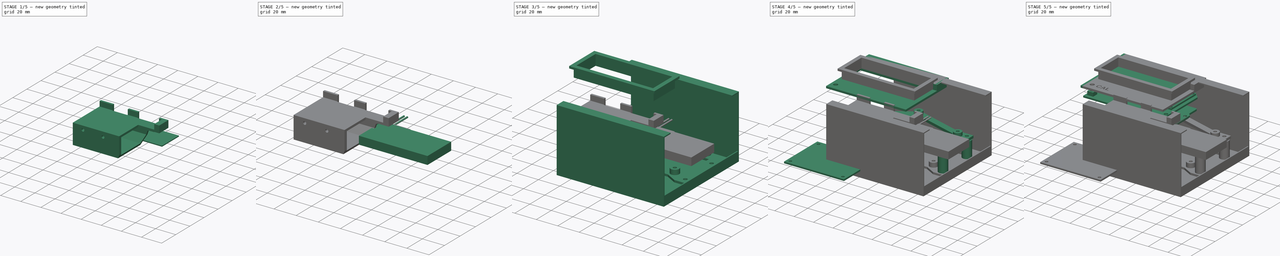
[diagram: build sequence overview — one tinted view per stage of 5, left to right]
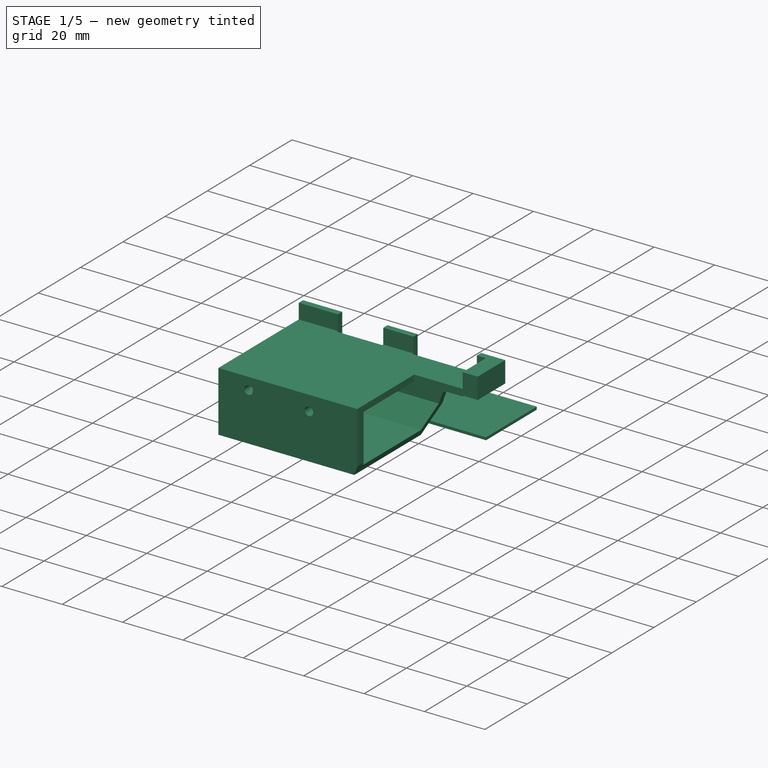
[diagram: stage 1 of 5 — iso view after this stage's code; geometry added in this stage tinted green]
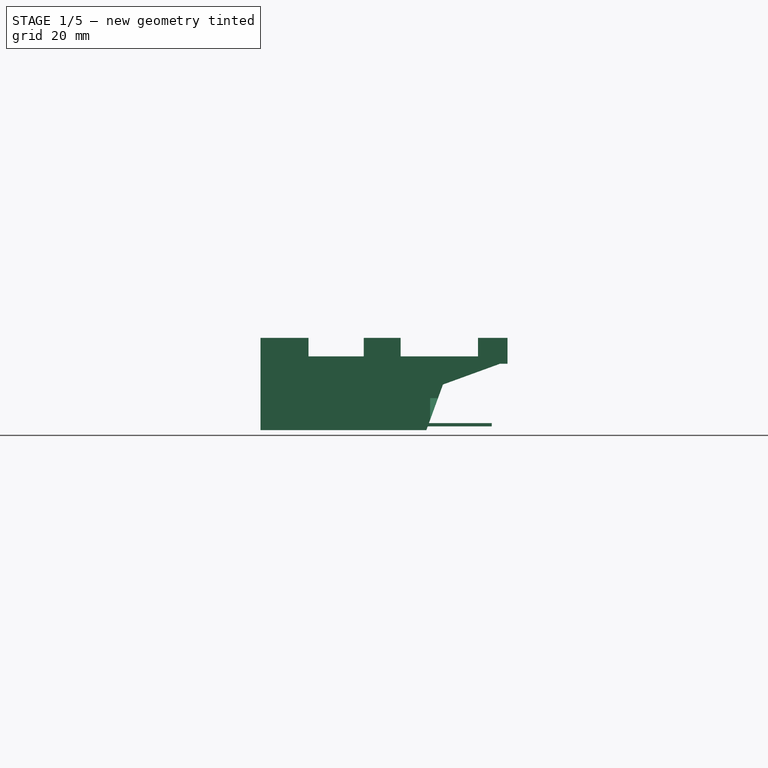
[diagram: stage 1 of 5 — front view after this stage's code; geometry added in this stage tinted green]
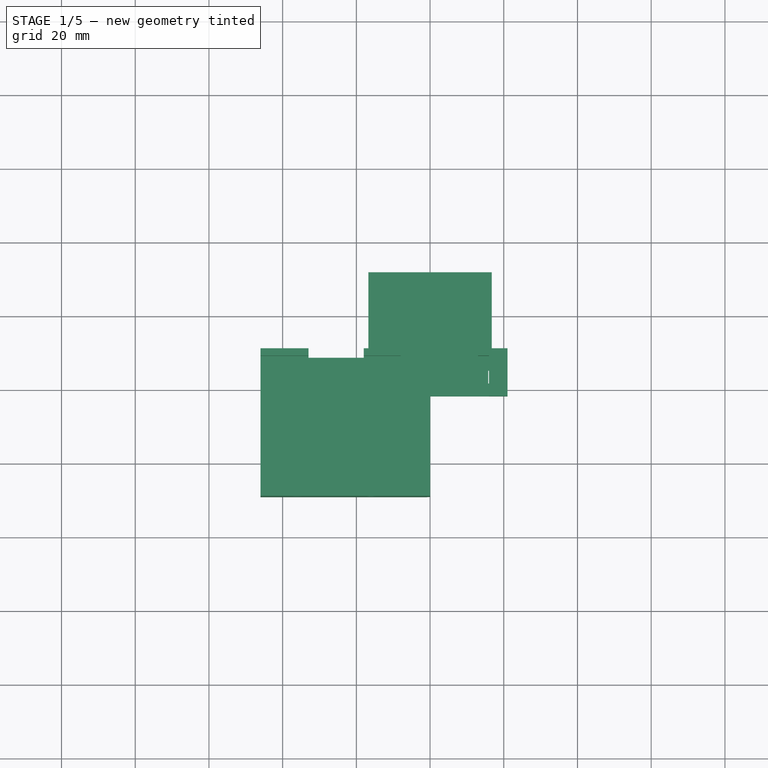
[diagram: stage 1 of 5 — top view after this stage's code; geometry added in this stage tinted green]
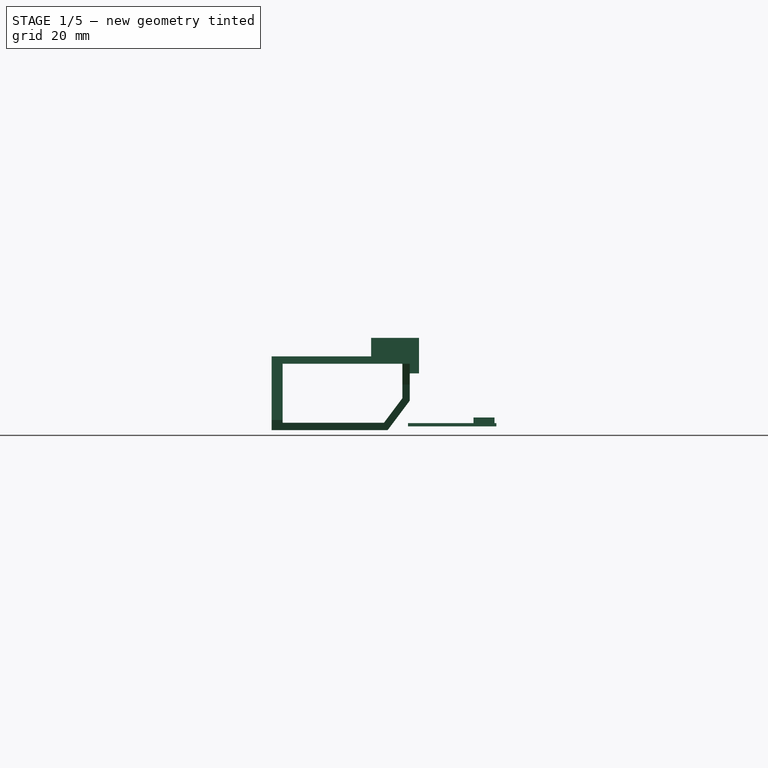
[diagram: stage 1 of 5 — right view after this stage's code; geometry added in this stage tinted green]
FCSTD DOCUMENT  (FreeCAD 0.21R33771 (Git))
Label: milliohm
License: All rights reserved
LicenseURL: http://en.wikipedia.org/wiki/All_rights_reserved
objects: Sketcher::SketchObject×46, PartDesign::Pad×40, PartDesign::Body×16, PartDesign::Pocket×6, Part::Part2DObjectPython×2, Part::Extrusion×2, Part::Cut×2, Spreadsheet::Sheet×1
note: 160 computed .brp shape members not serialized (recipe doc carries the construction recipe); baked Part::Feature solids carry a one-line shape summary decoded from their .brp

FEATURE [PartDesign::Body] Body015  label="batterie_703060"
  Group = -> [Sketch045,Pad040]
  Origin = -> Origin015
  Placement = pos=(-47.9,-14.7,20.2) rot=(0,0,1;0rad)
  Tip = -> Pad040
FEATURE [Sketcher::SketchObject] Sketch046
  AttachmentOffset = pos=(0,0,-46) rot=(0,0,1;0rad)
  FullyConstrained = true
  MapMode = 5
  Placement = pos=(-46,1.02e-14,-1.02e-14) rot=(0.57735,0.57735,0.57735;2.0944rad)
  Support = -> [YZ_Plane016]
  sketch-geometry (20):
    g0: LineSegment StartX=-9 StartY=14.4 StartZ=0 EndX=-9 EndY=19 EndZ=0
    g1: LineSegment StartX=-49 StartY=19 StartZ=0 EndX=-49 EndY=-1 EndZ=0
    g2: LineSegment StartX=-46 StartY=1 StartZ=0 EndX=-46 EndY=17 EndZ=0
    g3: LineSegment StartX=-46 StartY=17 StartZ=0 EndX=-13.5 EndY=17 EndZ=0
    g4: LineSegment StartX=-9 StartY=19 StartZ=0 EndX=-11 EndY=19 EndZ=0
    g5: LineSegment StartX=-11 StartY=19 StartZ=0 EndX=-49 EndY=19 EndZ=0
    g6: LineSegment StartX=-11 StartY=19 StartZ=0 EndX=-11 EndY=24 EndZ=0
    g7: LineSegment StartX=-11 StartY=24 StartZ=0 EndX=-9 EndY=24 EndZ=0
    g8: LineSegment StartX=-9 StartY=24 StartZ=0 EndX=-9 EndY=19 EndZ=0
    g9: LineSegment StartX=-9 StartY=14.4 StartZ=0 EndX=-11.5 EndY=14.4 EndZ=0
    g10: LineSegment StartX=-11.5 StartY=-1 StartZ=0 EndX=-17.5 EndY=-1 EndZ=0
    g11: LineSegment StartX=-17.5 StartY=-1 StartZ=0 EndX=-49 EndY=-1 EndZ=0
    g12: LineSegment StartX=-46 StartY=1 StartZ=0 EndX=-18.5 EndY=1 EndZ=0
    g13: LineSegment StartX=-18.5 StartY=1 StartZ=0 EndX=-13.5 EndY=1 EndZ=0
    g14: LineSegment StartX=-13.5 StartY=17 StartZ=0 EndX=-13.5 EndY=7.66667 EndZ=0
    g15: LineSegment StartX=-13.5 StartY=7.66667 StartZ=0 EndX=-13.5 EndY=1 EndZ=0
    g16: LineSegment StartX=-11.5 StartY=14.4 StartZ=0 EndX=-11.5 EndY=7 EndZ=0
    g17: LineSegment StartX=-11.5 StartY=7 StartZ=0 EndX=-11.5 EndY=-1 EndZ=0
    g18: LineSegment StartX=-11.5 StartY=7 StartZ=0 EndX=-17.5 EndY=-1 EndZ=0
    g19: LineSegment StartX=-13.5 StartY=7.66667 StartZ=0 EndX=-18.5 EndY=1 EndZ=0
  constraints (61):
    c: Vertical(g0)
    c: Coincident(g0,g4)
    c: Coincident(g5,g1)
    c: Vertical(g1)
    c: Vertical(g2)
    c: Coincident(g2,g3)
    c: Horizontal(g3)
    c: DistanceX(g1,g2) = 3
    c: DistanceX(g5,g-1) = 49
    c: Coincident(g14,g3)
    c: DistanceY(g3,g0) = 2
    c: DistanceY(g-1,g5) = 19
    c: DistanceY(g-1,g1) = -1
    c: DistanceX(g-2,g0) = -9
    c: Coincident(g4,g5)
    c: Horizontal(g4)
    c: Horizontal(g5)
    c: Coincident(g5,g6)
    c: Vertical(g6)
    c: Coincident(g6,g7)
    c: Horizontal(g7)
    c: Coincident(g7,g8)
    c: Coincident(g8,g0)
    c: Vertical(g8)
    c: DistanceY(g6,g6) = 5
    c: DistanceX(g7,g7) = 2
    c: DistanceX(g1,g0) = 40
    c: DistanceX(g15,g0) = 4.5
    c: DistanceY(g-1,g0) = 14.4
    c: Coincident(g2,g12)
    c: Coincident(g15,g13)
    c: Coincident(g0,g9)
    c: Horizontal(g9)
    c: Coincident(g9,g16)
    c: Coincident(g17,g10)
    c: Coincident(g11,g1)
    c: DistanceY(g17,g15) = 2
    c: DistanceX(g15,g17) = 2
    c: DistanceY(g2,g2) = 16
    c: DistanceX(g3,g3) = 32.5
    c: DistanceX(g9,g9) = 2.5
    c: Coincident(g10,g11)
    c: Horizontal(g10)
    c: Horizontal(g11)
    c: Coincident(g12,g13)
    c: Horizontal(g12)
    c: Horizontal(g13)
    c: Coincident(g14,g15)
    c: Vertical(g14)
    c: Vertical(g15)
    c: Coincident(g16,g17)
    c: Vertical(g16)
    c: Vertical(g17)
    c: DistanceX(g10,g10) = 6
    c: DistanceY(g17,g17) = 8
    c: Coincident(g18,g16)
    c: Coincident(g18,g10)
    c: Coincident(g19,g14)
    c: Coincident(g19,g12)
    c: Parallel(g18,g19)
    c: Distance(g12,g18) = 2
FEATURE [PartDesign::Pad] Pad041  label="base003"
  Direction = (1,-2e-16,3e-16)
  Length = 65
  Length2 = 10
  Placement = pos=(0,0,0) rot=(0.57735,0.57735,0.57735;2.0944rad)
  Profile = -> Sketch046
  ReferenceAxis = -> Sketch046 [N_Axis]
  Type = 0
FEATURE [Sketcher::SketchObject] Sketch049
  AttachmentOffset = pos=(0,0,50) rot=(0,0,1;0rad)
  FullyConstrained = true
  MapMode = 5
  Placement = pos=(0,-50,-1.11e-14) rot=(1,0,0;1.5708rad)
  Support = -> [XZ_Plane016]
  expr: Constraints[4] = -50 + 14
  expr: Constraints[5] = -30 + 59 - 14
  sketch-geometry (2):
    g0: Circle CenterX=-16 CenterY=14 CenterZ=0 NormalX=0 NormalY=0 NormalZ=1 AngleXU=0 Radius=1.4
    g1: Circle CenterX=-36 CenterY=15 CenterZ=0 NormalX=0 NormalY=0 NormalZ=1 AngleXU=0 Radius=1.4
  constraints (6):
    c: Equal(g0,g1)
    c: Diameter(g0) = 2.8
    c: DistanceX(g1,g0) = 20
    c: DistanceY(g0,g1) = 1
    c: DistanceX(g-2,g1) = -36
    c: DistanceY(g-1,g1) = 15
FEATURE [PartDesign::Pocket] Pocket004  label="trous fixation"
  BaseFeature = -> Pad041
  Direction = (0,1,2e-16)
  Length = 10
  Length2 = 5
  Placement = pos=(0,0,0) rot=(0.57735,0.57735,0.57735;2.0944rad)
  Profile = -> Sketch049
  ReferenceAxis = -> Sketch049 [N_Axis]
  Type = 0
FEATURE [Sketcher::SketchObject] Sketch050
  AttachmentOffset = pos=(0,0,22) rot=(0,0,1;0rad)
  FullyConstrained = true
  MapMode = 5
  Placement = pos=(0,0,22) rot=(0,0,1;0rad)
  Support = -> [XY_Plane016]
  sketch-geometry (9):
    g0: LineSegment StartX=-33 StartY=-9 StartZ=0 EndX=-18 EndY=-9 EndZ=0
    g1: LineSegment StartX=-18 StartY=-9 StartZ=0 EndX=-18 EndY=-11.5 EndZ=0
    g2: LineSegment StartX=-18 StartY=-11.5 StartZ=0 EndX=-33 EndY=-11.5 EndZ=0
    g3: LineSegment StartX=-33 StartY=-11.5 StartZ=0 EndX=-33 EndY=-9 EndZ=0
    g4: LineSegment StartX=-8 StartY=-9 StartZ=0 EndX=20 EndY=-9 EndZ=0
    g5: LineSegment StartX=20 StartY=-9 StartZ=0 EndX=20 EndY=-11.5 EndZ=0
    g6: LineSegment StartX=20 StartY=-11.5 StartZ=0 EndX=-8 EndY=-11.5 EndZ=0
    g7: LineSegment StartX=-8 StartY=-11.5 StartZ=0 EndX=-8 EndY=-9 EndZ=0
    g8: LineSegment StartX=20 StartY=-9 StartZ=0 EndX=-48 EndY=-9 EndZ=0
  constraints (28):
    c: Coincident(g0,g1)
    c: Coincident(g1,g2)
    c: Coincident(g2,g3)
    c: Coincident(g3,g0)
    c: Horizontal(g0)
    c: Horizontal(g2)
    c: Vertical(g1)
    c: Vertical(g3)
    c: Coincident(g4,g5)
    c: Coincident(g5,g6)
    c: Coincident(g6,g7)
    c: Coincident(g7,g4)
    c: Horizontal(g4)
    c: Horizontal(g6)
    c: Vertical(g5)
    c: Vertical(g7)
    c: Horizontal(g8)
    c: DistanceX(g8,g-1) = 48
    c: DistanceX(g8,g8) = 68
    c: DistanceY(g-1,g8) = -9
    c: PointOnObject(g0,g8)
    c: PointOnObject(g4,g8)
    c: DistanceY(g3,g3) = 2.5
    c: Horizontal(g6,g1)
    c: DistanceX(g8,g0) = 15
    c: DistanceX(g8,g0) = 30
    c: DistanceX(g8,g4) = 40
    c: PointOnObject(g8,g5)
FEATURE [PartDesign::Pocket] Pocket005  label="encoches001"
  BaseFeature = -> Pocket004
  Direction = (0,0,-1)
  Length = 10
  Length2 = 10
  Placement = pos=(0,0,0) rot=(0.57735,0.57735,0.57735;2.0944rad)
  Profile = -> Sketch050
  ReferenceAxis = -> Sketch050 [N_Axis]
  Type = 4
FEATURE [Sketcher::SketchObject] Sketch052
  AttachmentOffset = pos=(0,0,19) rot=(0,0,1;0rad)
  FullyConstrained = true
  MapMode = 5
  Placement = pos=(0,0,19) rot=(0,0,1;0rad)
  Support = -> [XY_Plane016]
  sketch-geometry (8):
    g0: LineSegment StartX=19 StartY=-22 StartZ=0 EndX=0 EndY=-22 EndZ=0
    g1: LineSegment StartX=0 StartY=-22 StartZ=0 EndX=0 EndY=-49 EndZ=0
    g2: LineSegment StartX=0 StartY=-49 StartZ=0 EndX=19 EndY=-49 EndZ=0
    g3: LineSegment StartX=19 StartY=-49 StartZ=0 EndX=19 EndY=-22 EndZ=0
    g4: LineSegment StartX=15.8 StartY=-15 StartZ=0 EndX=19 EndY=-15 EndZ=0
    g5: LineSegment StartX=19 StartY=-15 StartZ=0 EndX=19 EndY=-18.5 EndZ=0
    g6: LineSegment StartX=19 StartY=-18.5 StartZ=0 EndX=15.8 EndY=-18.5 EndZ=0
    g7: LineSegment StartX=15.8 StartY=-18.5 StartZ=0 EndX=15.8 EndY=-15 EndZ=0
  constraints (24):
    c: Coincident(g0,g1)
    c: Coincident(g1,g2)
    c: Coincident(g2,g3)
    c: Coincident(g3,g0)
    c: Horizontal(g0)
    c: Horizontal(g2)
    c: Vertical(g1)
    c: Vertical(g3)
    c: DistanceX(g-2,g0) = 19
    c: PointOnObject(g0,g-2)
    c: DistanceY(g-1,g2) = -49
    c: DistanceY(g3,g3) = 27
    c: Coincident(g4,g5)
    c: Coincident(g5,g6)
    c: Coincident(g6,g7)
    c: Coincident(g7,g4)
    c: Horizontal(g4)
    c: Horizontal(g6)
    c: Vertical(g5)
    c: Vertical(g7)
    c: Vertical(g5,g0)
    c: DistanceX(g4,g4) = 3.2
    c: DistanceY(g7,g7) = 3.5
    c: DistanceY(g-1,g4) = -15
FEATURE [PartDesign::Pocket] Pocket006  label="découpe1"
  BaseFeature = -> Pocket005
  Direction = (0,0,-1)
  Length = 5
  Length2 = 5
  Placement = pos=(0,0,0) rot=(0.57735,0.57735,0.57735;2.0944rad)
  Profile = -> Sketch052
  ReferenceAxis = -> Sketch052 [N_Axis]
  Type = 1
FEATURE [Sketcher::SketchObject] Sketch053
  FullyConstrained = true
  MapMode = 5
  Support = -> [XY_Plane017]
  sketch-geometry (4):
    g0: LineSegment StartX=-16.75 StartY=12 StartZ=0 EndX=16.75 EndY=12 EndZ=0
    g1: LineSegment StartX=16.75 StartY=12 StartZ=0 EndX=16.75 EndY=-12 EndZ=0
    g2: LineSegment StartX=16.75 StartY=-12 StartZ=0 EndX=-16.75 EndY=-12 EndZ=0
    g3: LineSegment StartX=-16.75 StartY=-12 StartZ=0 EndX=-16.75 EndY=12 EndZ=0
  constraints (11):
    c: Coincident(g0,g1)
    c: Coincident(g1,g2)
    c: Coincident(g2,g3)
    c: Coincident(g3,g0)
    c: Horizontal(g0)
    c: Horizontal(g2)
    c: Vertical(g1)
    c: Vertical(g3)
    c: DistanceX(g2,g2) = 33.5
    c: DistanceY(g3,g3) = 24
    c: Symmetric(g2,g0,g-1)
FEATURE [PartDesign::Pad] Pad043
  Direction = (0,0,1)
  Length = 0.9
  Length2 = 10
  Profile = -> Sketch053
  ReferenceAxis = -> Sketch053 [N_Axis]
  Type = 0
FEATURE [Sketcher::SketchObject] Sketch054
  FullyConstrained = false
  MapMode = 5
  Placement = pos=(0,0,0.9) rot=(0,0,1;0rad)
  Support = -> [Pad043]
  sketch-geometry (4):
    g0: LineSegment StartX=-10.4585 StartY=11.4895 StartZ=0 EndX=-3.56733 EndY=11.4895 EndZ=0
    g1: LineSegment StartX=-3.56733 StartY=11.4895 StartZ=0 EndX=-3.56733 EndY=5.79281 EndZ=0
    g2: LineSegment StartX=-3.56733 StartY=5.79281 StartZ=0 EndX=-10.4585 EndY=5.79281 EndZ=0
    g3: LineSegment StartX=-10.4585 StartY=5.79281 StartZ=0 EndX=-10.4585 EndY=11.4895 EndZ=0
  constraints (8):
    c: Coincident(g0,g1)
    c: Coincident(g1,g2)
    c: Coincident(g2,g3)
    c: Coincident(g3,g0)
    c: Horizontal(g0)
    c: Horizontal(g2)
    c: Vertical(g1)
    c: Vertical(g3)
FEATURE [PartDesign::Pad] Pad044
  BaseFeature = -> Pad043
  Direction = (0,0,1)
  Length = 1.5
  Length2 = 10
  Profile = -> Sketch054
  ReferenceAxis = -> Sketch054 [N_Axis]
  Type = 0
FEATURE [PartDesign::Body] Body017  label="Module chargeur"
  Group = -> [Sketch053,Pad043,Sketch054,Pad044,Sketch055,Pad045,Sketch015,Pocket007]
  Origin = -> Origin017
  Placement = pos=(-18.9,-31.5,2.1) rot=(0,0,1;3.14159rad)
  Tip = -> Pocket007
FEATURE [Sketcher::SketchObject] Sketch057
  AttachmentOffset = pos=(0,0,11) rot=(0,0,1;0rad)
  FullyConstrained = true
  MapMode = 5
  Placement = pos=(0,-11,-2.4e-15) rot=(1,0,0;1.5708rad)
  Support = -> [XZ_Plane018]
  sketch-geometry (6):
    g0: LineSegment StartX=19 StartY=17 StartZ=0 EndX=21 EndY=17 EndZ=0
    g1: LineSegment StartX=21 StartY=17 StartZ=0 EndX=21 EndY=24 EndZ=0
    g2: LineSegment StartX=21 StartY=24 StartZ=0 EndX=16 EndY=24 EndZ=0
    g3: LineSegment StartX=16 StartY=24 StartZ=0 EndX=16 EndY=19 EndZ=0
    g4: LineSegment StartX=16 StartY=19 StartZ=0 EndX=19 EndY=19 EndZ=0
    g5: LineSegment StartX=19 StartY=19 StartZ=0 EndX=19 EndY=17 EndZ=0
  constraints (18):
    c: Horizontal(g0)
    c: Coincident(g0,g1)
    c: Vertical(g1)
    c: Coincident(g1,g2)
    c: Horizontal(g2)
    c: Vertical(g3)
    c: Coincident(g3,g4)
    c: Coincident(g4,g5)
    c: Coincident(g5,g0)
    c: Vertical(g5)
    c: Horizontal(g4)
    c: DistanceX(g-2,g0) = 19
    c: Coincident(g2,g3)
    c: DistanceY(g5,g5) = 2
    c: DistanceX(g0,g0) = 2
    c: DistanceY(g3,g3) = 5
    c: DistanceY(g-1,g4) = 19
    c: DistanceX(g2,g2) = 5
FEATURE [PartDesign::Pad] Pad047  label="bloc"
  Direction = (0,-1,2e-16)
  Length = 11
  Length2 = 10
  Placement = pos=(0,0,0) rot=(1,0,0;1.5708rad)
  Profile = -> Sketch057
  ReferenceAxis = -> Sketch057 [N_Axis]
  Type = 0
FEATURE [Sketcher::SketchObject] Sketch058
  AttachmentOffset = pos=(0,0,17) rot=(0,0,1;0rad)
  FullyConstrained = true
  MapMode = 5
  Placement = pos=(0,0,17) rot=(0,0,1;0rad)
  Support = -> [XY_Plane018]
  sketch-geometry (4):
    g0: LineSegment StartX=16 StartY=-15.2 StartZ=0 EndX=19 EndY=-15.2 EndZ=0
    g1: LineSegment StartX=19 StartY=-15.2 StartZ=0 EndX=19 EndY=-18.3 EndZ=0
    g2: LineSegment StartX=19 StartY=-18.3 StartZ=0 EndX=16 EndY=-18.3 EndZ=0
    g3: LineSegment StartX=16 StartY=-18.3 StartZ=0 EndX=16 EndY=-15.2 EndZ=0
  constraints (12):
    c: Coincident(g0,g1)
    c: Coincident(g1,g2)
    c: Coincident(g2,g3)
    c: Coincident(g3,g0)
    c: Horizontal(g0)
    c: Horizontal(g2)
    c: Vertical(g1)
    c: Vertical(g3)
    c: DistanceY(g-1,g0) = -15.2
    c: DistanceY(g1,g1) = 3.1
    c: DistanceX(g2,g2) = 3
    c: DistanceX(g-2,g0) = 19
FEATURE [PartDesign::Pad] Pad048  label="tenon"
  BaseFeature = -> Pad047
  Direction = (0,0,1)
  Length = 2
  Length2 = 10
  Placement = pos=(0,0,0) rot=(1,0,0;1.5708rad)
  Profile = -> Sketch058
  ReferenceAxis = -> Sketch058 [N_Axis]
  Type = 0
FEATURE [Sketcher::SketchObject] Sketch059
  AttachmentOffset = pos=(0,0,11.5) rot=(0,0,1;0rad)
  FullyConstrained = true
  MapMode = 5
  Placement = pos=(0,-11.5,-2.6e-15) rot=(1,0,0;1.5708rad)
  Support = -> [XZ_Plane016]
  sketch-geometry (4):
    g0: LineSegment StartX=-1 StartY=-1 StartZ=0 EndX=19 EndY=-1 EndZ=0
    g1: LineSegment StartX=19 StartY=-1 StartZ=0 EndX=19 EndY=17 EndZ=0
    g2: LineSegment StartX=19 StartY=17 StartZ=0 EndX=3.49782 EndY=11.3577 EndZ=0
    g3: LineSegment StartX=3.49782 StartY=11.3577 StartZ=0 EndX=-1 EndY=-1 EndZ=0
  constraints (12):
    c: Coincident(g3,g0)
    c: Coincident(g0,g1)
    c: Coincident(g1,g2)
    c: Coincident(g2,g3)
    c: Vertical(g1)
    c: Horizontal(g0)
    c: DistanceY(g-1,g0) = -1
    c: DistanceX(g-2,g0) = 19
    c: DistanceY(g-1,g1) = 17
    c: DistanceX(g-2,g0) = -1
    c: Angle(g0,g2) = 0.349066
    c: Angle(g0,g3) = 1.22173
FEATURE [PartDesign::Pocket] Pocket008  label="découpe2"
  BaseFeature = -> Pocket006
  Direction = (0,1,2e-16)
  Length = 5
  Length2 = 5
  Placement = pos=(0,0,0) rot=(0.57735,0.57735,0.57735;2.0944rad)
  Profile = -> Sketch059
  ReferenceAxis = -> Sketch059 [N_Axis]
  Reversed = true
  Type = 1
FEATURE [PartDesign::Body] Body016  label="support_lipo"
  Group = -> [Sketch046,Pad041,Sketch049,Pocket004,Sketch050,Pocket005,Sketch052,Pocket006,Sketch059,Pocket008]
  Origin = -> Origin016
  Tip = -> Pocket008
FEATURE [Sketcher::SketchObject] Sketch060
  AttachmentOffset = pos=(0,0,11) rot=(0,0,1;0rad)
  FullyConstrained = true
  MapMode = 5
  Placement = pos=(0,-11,-2.4e-15) rot=(1,0,0;1.5708rad)
  Support = -> [XZ_Plane018]
  sketch-geometry (4):
    g0: LineSegment StartX=21 StartY=17 StartZ=0 EndX=21 EndY=24 EndZ=0
    g1: LineSegment StartX=21 StartY=24 StartZ=0 EndX=13 EndY=24 EndZ=0
    g2: LineSegment StartX=13 StartY=24 StartZ=0 EndX=13 EndY=17 EndZ=0
    g3: LineSegment StartX=13 StartY=17 StartZ=0 EndX=21 EndY=17 EndZ=0
  constraints (12):
    c: Vertical(g0)
    c: Coincident(g0,g1)
    c: Horizontal(g1)
    c: Vertical(g2)
    c: Coincident(g2,g3)
    c: Horizontal(g3)
    c: Coincident(g1,g2)
    c: DistanceY(g2,g2) = 7
    c: DistanceY(g-1,g3) = 17
    c: DistanceX(g1,g1) = 8
    c: Coincident(g0,g3)
    c: DistanceX(g-2,g0) = 21
FEATURE [PartDesign::Pad] Pad049
  BaseFeature = -> Pad048
  Direction = (0,-1,2e-16)
  Length = 2
  Length2 = 10
  Placement = pos=(0,0,0) rot=(1,0,0;1.5708rad)
  Profile = -> Sketch060
  ReferenceAxis = -> Sketch060 [N_Axis]
  Reversed = true
  Type = 0
FEATURE [PartDesign::Body] Body018  label="butée_batterie_a_coller"
  Group = -> [Sketch057,Pad047,Sketch058,Pad048,Sketch060,Pad049]
  Origin = -> Origin018
  Tip = -> Pad049
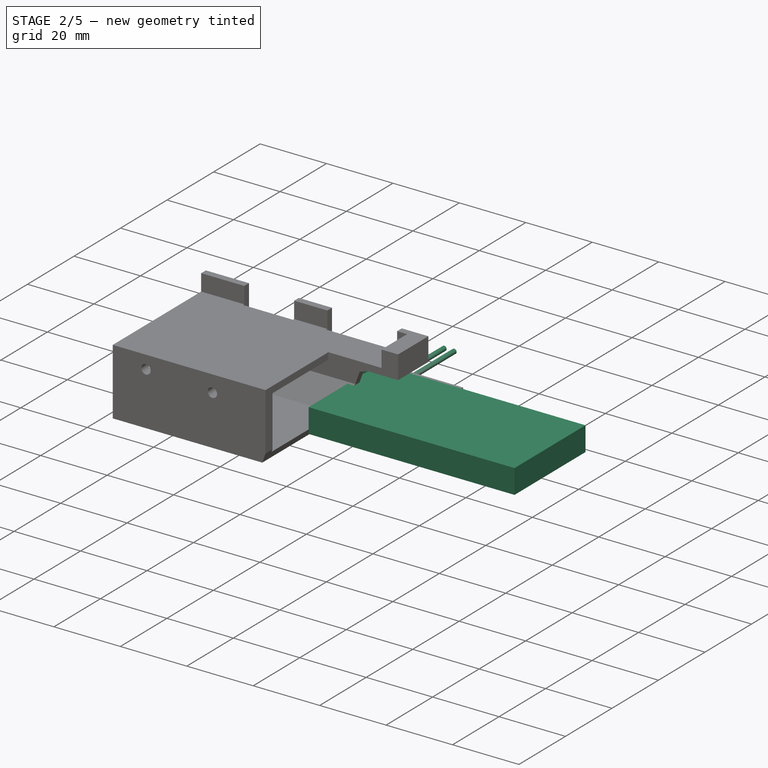
[diagram: stage 2 of 5 — iso view after this stage's code; geometry added in this stage tinted green]
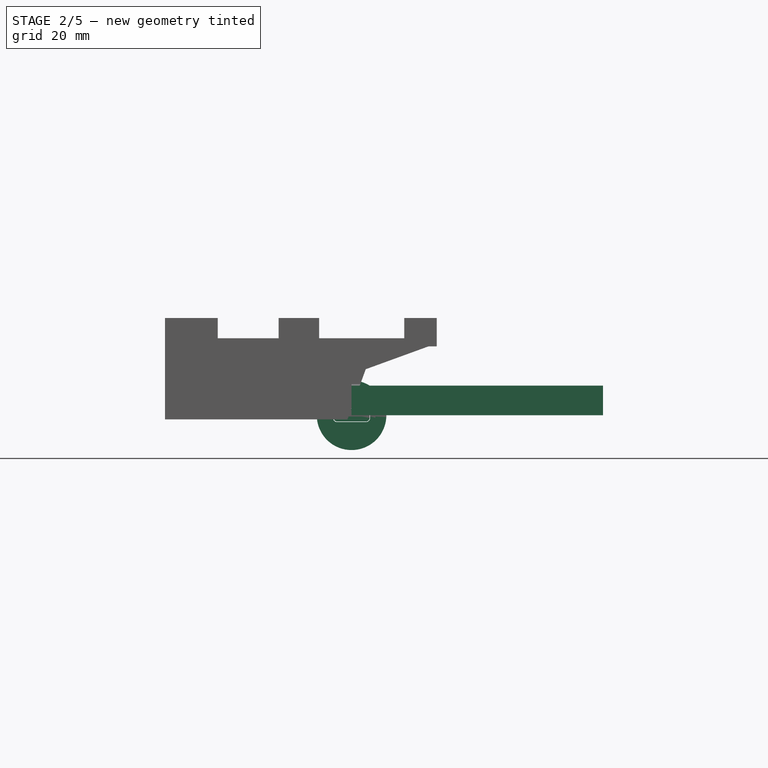
[diagram: stage 2 of 5 — front view after this stage's code; geometry added in this stage tinted green]
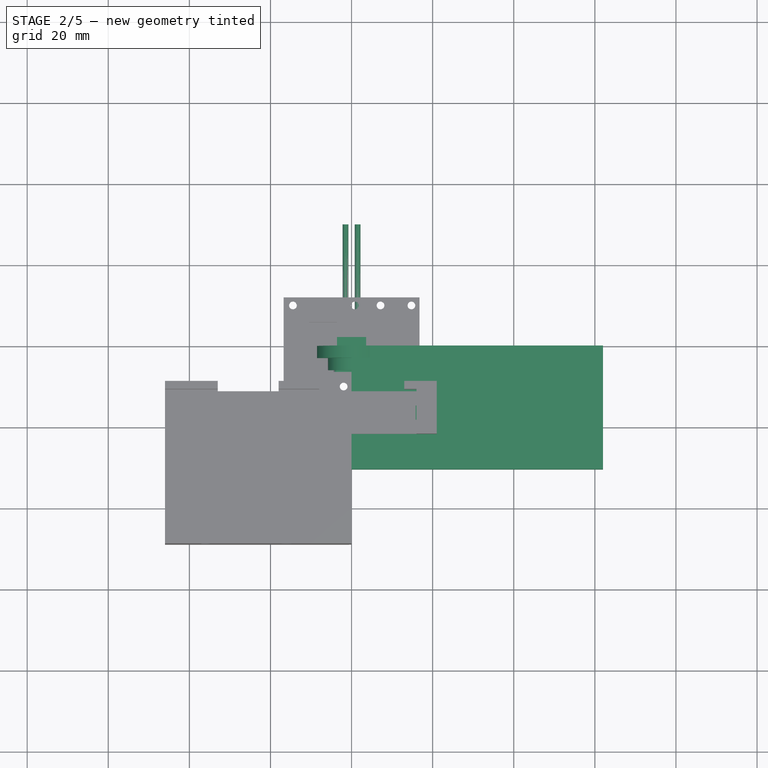
[diagram: stage 2 of 5 — top view after this stage's code; geometry added in this stage tinted green]
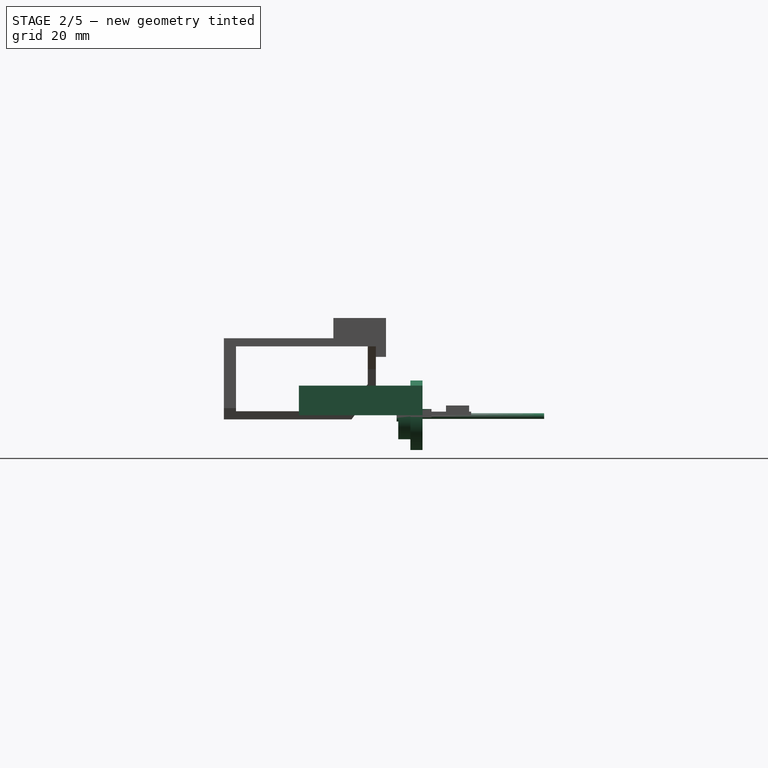
[diagram: stage 2 of 5 — right view after this stage's code; geometry added in this stage tinted green]
FEATURE [PartDesign::Body] Body005  label="cache_LCD_V2"
  Group = -> [Sketch012,Pad011,Sketch013,Pad012,Sketch031,Pad029]
  Origin = -> Origin005
  Placement = pos=(30.8,-0.6,0) rot=(0,0,1;0rad)
  Tip = -> Pad029
FEATURE [Sketcher::SketchObject] Sketch032
  FullyConstrained = true
  MapMode = 5
  Placement = pos=(0,0,0) rot=(1,0,0;1.5708rad)
  Support = -> [XZ_Plane012]
  expr: Constraints[21] = <<param>>.ec
  expr: Constraints[31] = <<param>>.hc
  expr: Constraints[33] = <<param>>.hm
  expr: Constraints[34] = <<param>>.lc
  sketch-geometry (16):
    g0: LineSegment StartX=-3.5 StartY=-1.55 StartZ=0 EndX=3.5 EndY=-1.55 EndZ=0
    g1: LineSegment StartX=3.5 StartY=1.55 StartZ=0 EndX=-3.5 EndY=1.55 EndZ=0
    g2: LineSegment StartX=-3.5 StartY=-1.3 StartZ=0 EndX=3.5 EndY=-1.3 EndZ=0
    g3: LineSegment StartX=3.5 StartY=1.3 StartZ=0 EndX=-3.5 EndY=1.3 EndZ=0
    g4: ArcOfCircle CenterX=-3.5 CenterY=0.6 CenterZ=0 NormalX=0 NormalY=0 NormalZ=1 AngleXU=0 Radius=0.7 StartAngle=1.5708 EndAngle=3.14159
    g5: ArcOfCircle CenterX=-3.5 CenterY=-0.6 CenterZ=0 NormalX=0 NormalY=0 NormalZ=1 AngleXU=0 Radius=0.7 StartAngle=3.14159 EndAngle=4.71239
    g6: ArcOfCircle CenterX=-3.5 CenterY=0.6 CenterZ=0 NormalX=0 NormalY=0 NormalZ=1 AngleXU=0 Radius=0.95 StartAngle=1.5708 EndAngle=3.14159
    g7: ArcOfCircle CenterX=-3.5 CenterY=-0.6 CenterZ=0 NormalX=0 NormalY=0 NormalZ=1 AngleXU=0 Radius=0.95 StartAngle=3.14159 EndAngle=4.71239
    g8: ArcOfCircle CenterX=3.5 CenterY=0.6 CenterZ=0 NormalX=0 NormalY=0 NormalZ=1 AngleXU=0 Radius=0.7 StartAngle=0 EndAngle=1.5708
    g9: ArcOfCircle CenterX=3.5 CenterY=0.6 CenterZ=0 NormalX=0 NormalY=0 NormalZ=1 AngleXU=0 Radius=0.95 StartAngle=0 EndAngle=1.5708
    g10: ArcOfCircle CenterX=3.5 CenterY=-0.6 CenterZ=0 NormalX=0 NormalY=0 NormalZ=1 AngleXU=0 Radius=0.7 StartAngle=4.71239 EndAngle=6.28319
    g11: ArcOfCircle CenterX=3.5 CenterY=-0.6 CenterZ=0 NormalX=0 NormalY=0 NormalZ=1 AngleXU=0 Radius=0.95 StartAngle=4.71239 EndAngle=6.28319
    g12: LineSegment StartX=-4.45 StartY=0.6 StartZ=0 EndX=-4.45 EndY=-0.6 EndZ=0
    g13: LineSegment StartX=-4.2 StartY=0.6 StartZ=0 EndX=-4.2 EndY=-0.6 EndZ=0
    g14: LineSegment StartX=4.2 StartY=0.6 StartZ=0 EndX=4.2 EndY=-0.6 EndZ=0
    g15: LineSegment StartX=4.45 StartY=0.6 StartZ=0 EndX=4.45 EndY=-0.6 EndZ=0
  constraints (35):
    c: Horizontal(g1)
    c: Coincident(g6,g4)
    c: Coincident(g7,g5)
    c: Coincident(g9,g8)
    c: Coincident(g11,g10)
    c: Equal(g7,g6)
    c: Equal(g6,g9)
    c: Equal(g9,g11)
    c: Equal(g4,g5)
    c: Equal(g5,g10)
    c: Equal(g10,g8)
    c: Vertical(g15)
    c: Tangent(g4,g3) = -1.5708
    c: Tangent(g6,g1) = -1.5708
    c: Tangent(g12,g6) = -1.5708
    c: Tangent(g13,g4) = -1.5708
    c: Tangent(g12,g7) = -1.5708
    c: Tangent(g13,g5) = -1.5708
    c: Tangent(g5,g2) = -1.5708
    c: Tangent(g7,g0) = -1.5708
    c: Vertical(g12)
    c: DistanceY(g3,g1) = 0.25
    c: Horizontal(g2)
    c: Tangent(g11,g0) = -1.5708
    c: Tangent(g10,g2) = -1.5708
    c: Tangent(g14,g10) = 1.5708
    c: Tangent(g15,g11) = 1.5708
    c: Tangent(g14,g8) = 1.5708
    c: Tangent(g15,g9) = 1.5708
    c: Tangent(g8,g3) = -1.5708
    c: Tangent(g9,g1) = -1.5708
    c: DistanceY(g0,g1) = 3.1
    c: Symmetric(g2,g3,g-1)
    c: DistanceY(g12,g12) = 1.2
    c: DistanceX(g6,g9) = 8.9
FEATURE [PartDesign::Pad] Pad030  label="coquille"
  Direction = (0,-1,2e-16)
  Length = 6.4
  Length2 = 10
  Placement = pos=(0,0,0) rot=(1,0,0;1.5708rad)
  Profile = -> Sketch032
  ReferenceAxis = -> Sketch032 [N_Axis]
  Type = 0
  expr: Length = <<param>>.pc
FEATURE [Sketcher::SketchObject] Sketch033
  FullyConstrained = true
  MapMode = 5
  Placement = pos=(0,0,0) rot=(1,0,0;1.5708rad)
  Support = -> [XZ_Plane012]
  expr: Constraints[10] = <<param>>.hc / 2
  sketch-geometry (4):
    g0: LineSegment StartX=-3.58 StartY=1.55 StartZ=0 EndX=3.58 EndY=1.55 EndZ=0
    g1: LineSegment StartX=3.58 StartY=1.55 StartZ=0 EndX=3.58 EndY=-0.53 EndZ=0
    g2: LineSegment StartX=3.58 StartY=-0.53 StartZ=0 EndX=-3.58 EndY=-0.53 EndZ=0
    g3: LineSegment StartX=-3.58 StartY=-0.53 StartZ=0 EndX=-3.58 EndY=1.55 EndZ=0
  constraints (11):
    c: Coincident(g0,g1)
    c: Coincident(g1,g2)
    c: Coincident(g2,g3)
    c: Coincident(g3,g0)
    c: Horizontal(g2)
    c: Vertical(g1)
    c: Vertical(g3)
    c: DistanceX(g0,g0) = 7.16
    c: DistanceY(g1,g1) = 2.08
    c: Symmetric(g0,g0,g-2)
    c: DistanceY(g-1,g0) = 1.55
FEATURE [PartDesign::Pad] Pad031  label="bloc AR"
  BaseFeature = -> Pad030
  Direction = (0,-1,2e-16)
  Length = 2.2
  Length2 = 10
  Placement = pos=(0,0,0) rot=(1,0,0;1.5708rad)
  Profile = -> Sketch033
  ReferenceAxis = -> Sketch033 [N_Axis]
  Reversed = true
  Type = 0
FEATURE [Sketcher::SketchObject] Sketch034
  FullyConstrained = true
  MapMode = 5
  Placement = pos=(0,0,0) rot=(1,0,0;1.5708rad)
  Support = -> [XZ_Plane012]
  sketch-geometry (2):
    g0: Circle CenterX=-1.5 CenterY=-0.2 CenterZ=0 NormalX=0 NormalY=0 NormalZ=1 AngleXU=0 Radius=0.7
    g1: Circle CenterX=1.5 CenterY=-0.2 CenterZ=0 NormalX=0 NormalY=0 NormalZ=1 AngleXU=0 Radius=0.7
  constraints (5):
    c: Equal(g0,g1)
    c: Diameter(g0) = 1.4
    c: Symmetric(g0,g1,g-2)
    c: DistanceX(g0,g1) = 3
    c: DistanceY(g-1,g1) = -0.2
FEATURE [PartDesign::Pad] Pad032  label="fils"
  BaseFeature = -> Pad031
  Direction = (0,-1,2e-16)
  Length = 30
  Length2 = 10
  Placement = pos=(0,0,0) rot=(1,0,0;1.5708rad)
  Profile = -> Sketch034
  ReferenceAxis = -> Sketch034 [N_Axis]
  Reversed = true
  Type = 0
FEATURE [Sketcher::SketchObject] Sketch035
  ExternalGeometry = -> [Pad032,Pad030]
  FullyConstrained = true
  MapMode = 5
  Placement = pos=(0,0,0) rot=(-1,0,0;1.5708rad)
  Support = -> [Pad032]
  sketch-geometry (8):
    g0: ArcOfCircle CenterX=-3.5 CenterY=0.6 CenterZ=0 NormalX=0 NormalY=0 NormalZ=1 AngleXU=0 Radius=0.7 StartAngle=1.5708 EndAngle=3.14159
    g1: ArcOfCircle CenterX=-3.5 CenterY=-0.6 CenterZ=0 NormalX=0 NormalY=0 NormalZ=1 AngleXU=0 Radius=0.7 StartAngle=3.14159 EndAngle=4.71239
    g2: ArcOfCircle CenterX=3.5 CenterY=0.6 CenterZ=0 NormalX=0 NormalY=0 NormalZ=1 AngleXU=0 Radius=0.7 StartAngle=0 EndAngle=1.5708
    g3: ArcOfCircle CenterX=3.5 CenterY=-0.6 CenterZ=0 NormalX=0 NormalY=0 NormalZ=1 AngleXU=0 Radius=0.7 StartAngle=4.71239 EndAngle=6.28319
    g4: LineSegment StartX=-3.5 StartY=1.3 StartZ=0 EndX=3.5 EndY=1.3 EndZ=0
    g5: LineSegment StartX=-3.5 StartY=-1.3 StartZ=0 EndX=3.5 EndY=-1.3 EndZ=0
    g6: LineSegment StartX=-4.2 StartY=0.6 StartZ=0 EndX=-4.2 EndY=-0.6 EndZ=0
    g7: LineSegment StartX=4.2 StartY=0.6 StartZ=0 EndX=4.2 EndY=-0.6 EndZ=0
  constraints (22):
    c: Coincident(g0,g-3)
    c: Coincident(g0,g-3)
    c: Coincident(g1,g-5)
    c: Coincident(g1,g-5)
    c: Coincident(g2,g-4)
    c: Coincident(g2,g-4)
    c: Coincident(g3,g-6)
    c: Coincident(g3,g-6)
    c: Vertical(g1,g1)
    c: Horizontal(g0,g0)
    c: Horizontal(g2,g2)
    c: Horizontal(g3,g3)
    c: Coincident(g4,g0)
    c: Coincident(g4,g2)
    c: Coincident(g5,g1)
    c: Coincident(g5,g3)
    c: Horizontal(g5)
    c: Tangent(g5,g3)
    c: Coincident(g6,g0)
    c: Coincident(g6,g1)
    c: Coincident(g7,g2)
    c: Coincident(g7,g3)
FEATURE [PartDesign::Pad] Pad033  label="fond001"
  BaseFeature = -> Pad032
  Direction = (0,1,-2e-16)
  Length = 0.2
  Length2 = 10
  Placement = pos=(0,0,0) rot=(1,0,0;1.5708rad)
  Profile = -> Sketch035
  ReferenceAxis = -> Sketch035 [N_Axis]
  Reversed = true
  Type = 0
FEATURE [Sketcher::SketchObject] Sketch036
  FullyConstrained = true
  MapMode = 5
  Placement = pos=(0,0,0) rot=(1,0,0;1.5708rad)
  Support = -> [XZ_Plane012]
  sketch-geometry (4):
    g0: LineSegment StartX=-2.55 StartY=0.3 StartZ=0 EndX=2.55 EndY=0.3 EndZ=0
    g1: LineSegment StartX=2.55 StartY=0.3 StartZ=0 EndX=2.55 EndY=-0.3 EndZ=0
    g2: LineSegment StartX=2.55 StartY=-0.3 StartZ=0 EndX=-2.55 EndY=-0.3 EndZ=0
    g3: LineSegment StartX=-2.55 StartY=-0.3 StartZ=0 EndX=-2.55 EndY=0.3 EndZ=0
  constraints (11):
    c: Coincident(g0,g1)
    c: Coincident(g1,g2)
    c: Coincident(g2,g3)
    c: Coincident(g3,g0)
    c: Horizontal(g0)
    c: Horizontal(g2)
    c: Vertical(g1)
    c: Vertical(g3)
    c: DistanceX(g0,g0) = 5.1
    c: DistanceY(g1,g1) = 0.6
    c: Symmetric(g0,g1,g-1)
FEATURE [PartDesign::Pad] Pad034  label="contacts"
  BaseFeature = -> Pad033
  Direction = (0,-1,2e-16)
  Length = 6.4
  Length2 = 10
  Placement = pos=(0,0,0) rot=(1,0,0;1.5708rad)
  Profile = -> Sketch036
  ReferenceAxis = -> Sketch036 [N_Axis]
  Type = 0
  expr: Length = <<param>>.pc
FEATURE [PartDesign::Body] Body012  label="prise USB-C"
  Group = -> [Sketch032,Pad030,Sketch033,Pad031,Sketch034,Pad032,Sketch035,Pad033,Sketch036,Pad034]
  Origin = -> Origin012
  Placement = pos=(12,-45.5,8.9) rot=(0,0,1;0rad)
  Tip = -> Pad034
FEATURE [Spreadsheet::Sheet] Spreadsheet  label="param"
  cells = A1='Paramètres prise USB-C; A2='largeur coquille; B2(lc)=8.9; A3='hauteur coquille; B3(hc)=3.1; A4='profondeur coquille; B4(pc)=6.4; A5='hauteur meplat côté; B5(hm)=1.2; A6='epaisseur parois coquille; B6(ec)=0.25
FEATURE [Sketcher::SketchObject] Sketch037
  FullyConstrained = false
  MapMode = 5
  Placement = pos=(0,0,0) rot=(1,0,0;1.5708rad)
  Support = -> [XZ_Plane013]
  expr: Constraints[11] = <<param>>.hm + 0.2
  expr: Constraints[12] = <<param>>.lc + 0.2
  expr: Constraints[17] = <<param>>.hc + 0.2
  sketch-geometry (11):
    g0: Circle CenterX=0 CenterY=0 CenterZ=0 NormalX=0 NormalY=0 NormalZ=1 AngleXU=0 Radius=8.57861
    g1: LineSegment StartX=-3.6 StartY=1.65 StartZ=0 EndX=3.6 EndY=1.65 EndZ=0
    g2: LineSegment StartX=-3.6 StartY=-1.65 StartZ=0 EndX=3.6 EndY=-1.65 EndZ=0
    g3: ArcOfCircle CenterX=-3.6 CenterY=0.7 CenterZ=0 NormalX=0 NormalY=0 NormalZ=1 AngleXU=0 Radius=0.95 StartAngle=1.5708 EndAngle=3.14159
    g4: ArcOfCircle CenterX=3.6 CenterY=0.7 CenterZ=0 NormalX=0 NormalY=0 NormalZ=1 AngleXU=0 Radius=0.95 StartAngle=1.74e-14 EndAngle=1.5708
    g5: ArcOfCircle CenterX=3.6 CenterY=-0.7 CenterZ=0 NormalX=0 NormalY=0 NormalZ=1 AngleXU=0 Radius=0.95 StartAngle=4.71239 EndAngle=6.28319
    g6: ArcOfCircle CenterX=-3.6 CenterY=-0.7 CenterZ=0 NormalX=0 NormalY=0 NormalZ=1 AngleXU=0 Radius=0.95 StartAngle=3.14159 EndAngle=4.71239
    g7: LineSegment StartX=-4.55 StartY=0.7 StartZ=0 EndX=-4.55 EndY=-0.7 EndZ=0
    g8: LineSegment StartX=4.55 StartY=-0.7 StartZ=0 EndX=4.55 EndY=0.7 EndZ=0
    g9: GeomPoint X=-8.55 Y=-0.7 Z=0
    g10: LineSegment StartX=-10.9284 StartY=18.0667 StartZ=0 EndX=11.9678 EndY=18.0667 EndZ=0
  constraints (26):
    c: Coincident(g0,g-1)
    c: Horizontal(g2)
    c: Tangent(g3,g1) = 1.5708
    c: Tangent(g7,g6) = -1.5708
    c: Tangent(g6,g2) = -1.5708
    c: Tangent(g7,g3) = -1.5708
    c: Tangent(g4,g1) = 1.5708
    c: Tangent(g8,g5) = -1.5708
    c: Tangent(g5,g2) = -1.5708
    c: Vertical(g7)
    c: Vertical(g8)
    c: DistanceY(g7,g7) = 1.4
    c: DistanceX(g6,g5) = 9.1
    c: Tangent(g8,g4) = -1.5708
    c: Equal(g6,g3)
    c: Equal(g3,g4)
    c: Equal(g4,g5)
    c: DistanceY(g2,g1) = 3.3
    c: Symmetric(g1,g2,g0)
    c: Horizontal(g1)
    c: PointOnObject(g9,g0)
    c: Horizontal(g9,g6)
    c: DistanceX(g9,g6) = 4
    c: Diameter(g0) = 17.1572
    c: Horizontal(g10)
    c: Distance(g0,g10) = 18.0667
FEATURE [PartDesign::Pad] Pad035  label="flasque AR"
  Direction = (0,-1,-2e-16)
  Length = 3
  Length2 = 10
  Placement = pos=(0,0,0) rot=(1,0,0;1.5708rad)
  Profile = -> Sketch037
  ReferenceAxis = -> Sketch037 [N_Axis]
  Type = 0
FEATURE [Sketcher::SketchObject] Sketch038
  AttachmentOffset = pos=(0,0,3) rot=(0,0,1;0rad)
  FullyConstrained = true
  MapMode = 5
  Placement = pos=(0,-3,-7e-16) rot=(1,0,0;1.5708rad)
  Support = -> [XZ_Plane013]
  sketch-geometry (7):
    g0: Circle CenterX=0 CenterY=0 CenterZ=0 NormalX=0 NormalY=0 NormalZ=1 AngleXU=0 Radius=5.9
    g1: GeomPoint X=-5.9 Y=0 Z=0
    g2: GeomPoint X=-4.7 Y=0 Z=0
    g3: ArcOfCircle CenterX=-0.7 CenterY=2e-16 CenterZ=0 NormalX=0 NormalY=0 NormalZ=1 AngleXU=0 Radius=4 StartAngle=1.5708 EndAngle=4.71239
    g4: ArcOfCircle CenterX=0.7 CenterY=-2e-16 CenterZ=0 NormalX=0 NormalY=0 NormalZ=1 AngleXU=0 Radius=4 StartAngle=4.71239 EndAngle=7.85398
    g5: LineSegment StartX=-0.7 StartY=-4 StartZ=0 EndX=0.7 EndY=-4 EndZ=0
    g6: LineSegment StartX=0.7 StartY=4 StartZ=0 EndX=-0.7 EndY=4 EndZ=0
  constraints (15):
    c: Diameter(g0) = 11.8
    c: PointOnObject(g1,g0)
    c: PointOnObject(g1,g-1)
    c: PointOnObject(g2,g-1)
    c: DistanceX(g1,g2) = 1.2
    c: Tangent(g3,g5) = -1.5708
    c: Tangent(g5,g4) = -1.5708
    c: Tangent(g4,g6) = -1.5708
    c: Tangent(g6,g3) = -1.5708
    c: Equal(g3,g4)
    c: Horizontal(g6)
    c: Symmetric(g4,g3,g-1)
    c: Coincident(g0,g-1)
    c: PointOnObject(g2,g3)
    c: DistanceY(g4,g4) = 8
FEATURE [PartDesign::Pad] Pad036
  BaseFeature = -> Pad035
  Direction = (0,-1,-2e-16)
  Length = 3
  Length2 = 10
  Placement = pos=(0,0,0) rot=(1,0,0;1.5708rad)
  Profile = -> Sketch038
  ReferenceAxis = -> Sketch038 [N_Axis]
  Type = 0
FEATURE [PartDesign::Body] Body013  label="bride_USB"
  Group = -> [Sketch037,Pad035,Sketch038,Pad036]
  Origin = -> Origin013
  Placement = pos=(12,-46,8.9) rot=(0,0,1;0rad)
  Tip = -> Pad036
FEATURE [Sketcher::SketchObject] Sketch045
  FullyConstrained = true
  MapMode = 5
  Placement = pos=(0,0,0) rot=(0.57735,0.57735,0.57735;2.0944rad)
  Support = -> [YZ_Plane015]
  sketch-geometry (4):
    g0: LineSegment StartX=-30.5 StartY=7.3 StartZ=0 EndX=0 EndY=7.3 EndZ=0
    g1: LineSegment StartX=0 StartY=7.3 StartZ=0 EndX=0 EndY=0 EndZ=0
    g2: LineSegment StartX=0 StartY=0 StartZ=0 EndX=-30.5 EndY=0 EndZ=0
    g3: LineSegment StartX=-30.5 StartY=0 StartZ=0 EndX=-30.5 EndY=7.3 EndZ=0
  constraints (11):
    c: Coincident(g0,g1)
    c: Coincident(g1,g2)
    c: Coincident(g2,g3)
    c: Coincident(g3,g0)
    c: Horizontal(g0)
    c: Horizontal(g2)
    c: Vertical(g1)
    c: Vertical(g3)
    c: DistanceX(g0,g0) = 30.5
    c: DistanceY(g3,g3) = 7.3
    c: Coincident(g1,g-1)
FEATURE [PartDesign::Pad] Pad040
  Direction = (1,-2e-16,3e-16)
  Length = 62
  Length2 = 10
  Placement = pos=(0,0,0) rot=(0.57735,0.57735,0.57735;2.0944rad)
  Profile = -> Sketch045
  ReferenceAxis = -> Sketch045 [N_Axis]
  Type = 0
FEATURE [Sketcher::SketchObject] Sketch055
  FullyConstrained = false
  MapMode = 5
  Placement = pos=(0,0,0.9) rot=(0,0,1;0rad)
  Support = -> [Pad044]
  sketch-geometry (4):
    g0: LineSegment StartX=10.1438 StartY=-1.79245 StartZ=0 EndX=16.7593 EndY=-1.79245 EndZ=0
    g1: LineSegment StartX=16.7593 StartY=-1.79245 StartZ=0 EndX=16.7593 EndY=-8.40792 EndZ=0
    g2: LineSegment StartX=16.7593 StartY=-8.40792 StartZ=0 EndX=10.1438 EndY=-8.40792 EndZ=0
    g3: LineSegment StartX=10.1438 StartY=-8.40792 StartZ=0 EndX=10.1438 EndY=-1.79245 EndZ=0
  constraints (9):
    c: Coincident(g0,g1)
    c: Coincident(g1,g2)
    c: Coincident(g2,g3)
    c: Coincident(g3,g0)
    c: Horizontal(g0)
    c: Horizontal(g2)
    c: Vertical(g1)
    c: Vertical(g3)
    c: Equal(g2,g3)
FEATURE [PartDesign::Pad] Pad045
  BaseFeature = -> Pad044
  Direction = (0,0,1)
  Length = 2.1
  Length2 = 10
  Profile = -> Sketch055
  ReferenceAxis = -> Sketch055 [N_Axis]
  Type = 0
FEATURE [Sketcher::SketchObject] Sketch015
  ExternalGeometry = -> [Pad045]
  FullyConstrained = true
  MapMode = 5
  Placement = pos=(0,0,0.9) rot=(0,0,1;0rad)
  Support = -> [Pad045]
  sketch-geometry (6):
    g0: Circle CenterX=-14.45 CenterY=10 CenterZ=0 NormalX=0 NormalY=0 NormalZ=1 AngleXU=0 Radius=0.95
    g1: Circle CenterX=0.79 CenterY=10 CenterZ=0 NormalX=0 NormalY=0 NormalZ=1 AngleXU=0 Radius=0.95
    g2: Circle CenterX=7.14 CenterY=10 CenterZ=0 NormalX=0 NormalY=0 NormalZ=1 AngleXU=0 Radius=0.95
    g3: Circle CenterX=14.76 CenterY=10 CenterZ=0 NormalX=0 NormalY=0 NormalZ=1 AngleXU=0 Radius=0.95
    g4: Circle CenterX=-11.35 CenterY=-10 CenterZ=0 NormalX=0 NormalY=0 NormalZ=1 AngleXU=0 Radius=0.95
    g5: Circle CenterX=-1.95 CenterY=-10 CenterZ=0 NormalX=0 NormalY=0 NormalZ=1 AngleXU=0 Radius=0.95
  constraints (19):
    c: Diameter(g0) = 1.9
    c: Diameter(g1) = 1.9
    c: Diameter(g2) = 1.9
    c: Diameter(g3) = 1.9
    c: Horizontal(g0,g2)
    c: Horizontal(g2,g1)
    c: Horizontal(g1,g3)
    c: Distance(g0,g-3) = 2
    c: DistanceX(g0,g1) = 15.24
    c: DistanceX(g1,g2) = 6.35
    c: DistanceX(g2,g3) = 7.62
    c: Distance(g0,g-4) = 2.3
    c: DistanceX(g3,g-3) = 1.99
    c: Diameter(g4) = 1.9
    c: Diameter(g5) = 1.9
    c: DistanceX(g-4,g4) = 5.4
    c: DistanceX(g4,g5) = 9.4
    c: DistanceY(g-4,g4) = 2
    c: Horizontal(g4,g5)
FEATURE [PartDesign::Pocket] Pocket007
  BaseFeature = -> Pad045
  Direction = (0,0,-1)
  Length = 5
  Length2 = 5
  Profile = -> Sketch015
  ReferenceAxis = -> Sketch015 [N_Axis]
  Type = 0
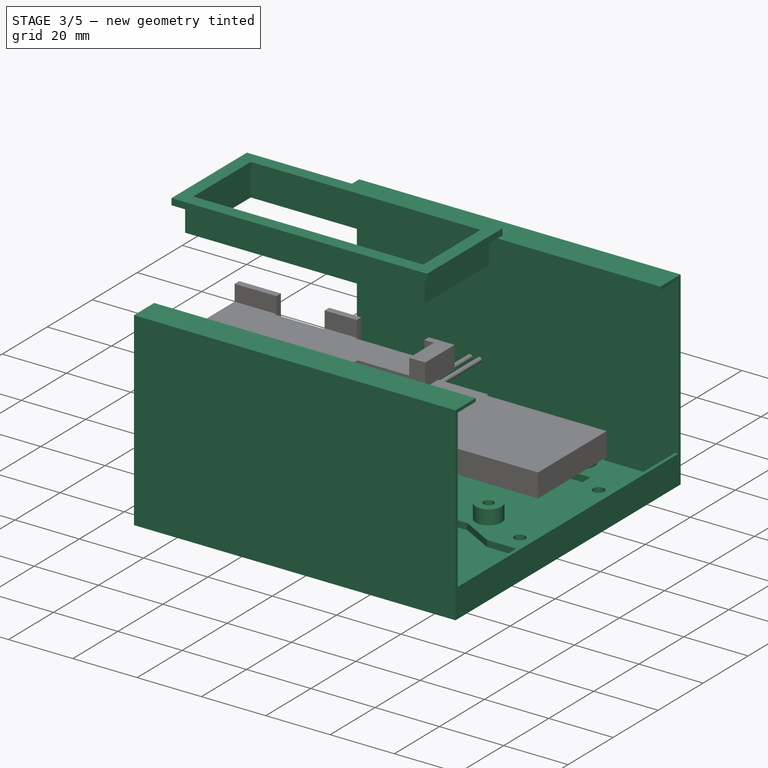
[diagram: stage 3 of 5 — iso view after this stage's code; geometry added in this stage tinted green]
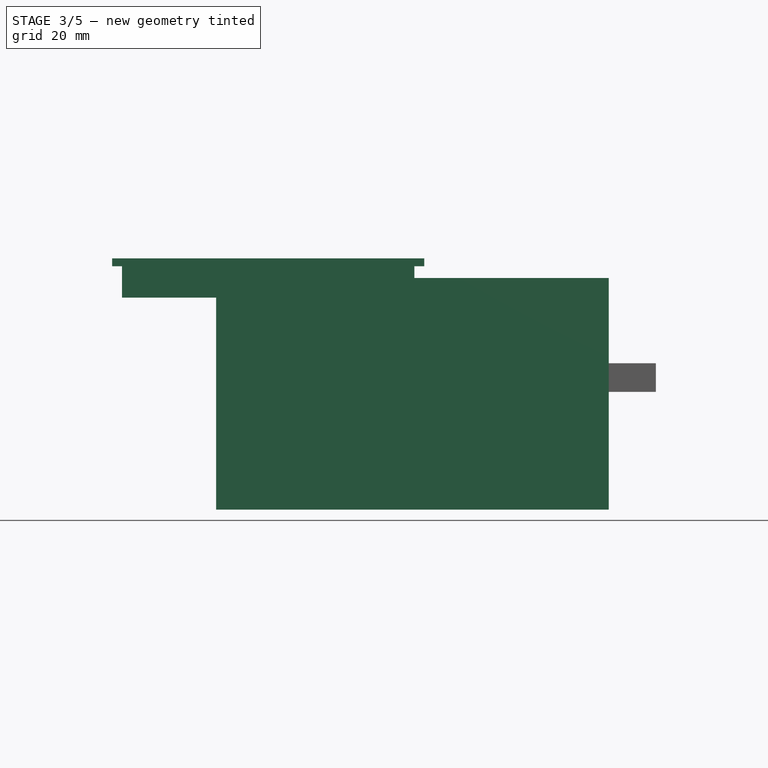
[diagram: stage 3 of 5 — front view after this stage's code; geometry added in this stage tinted green]
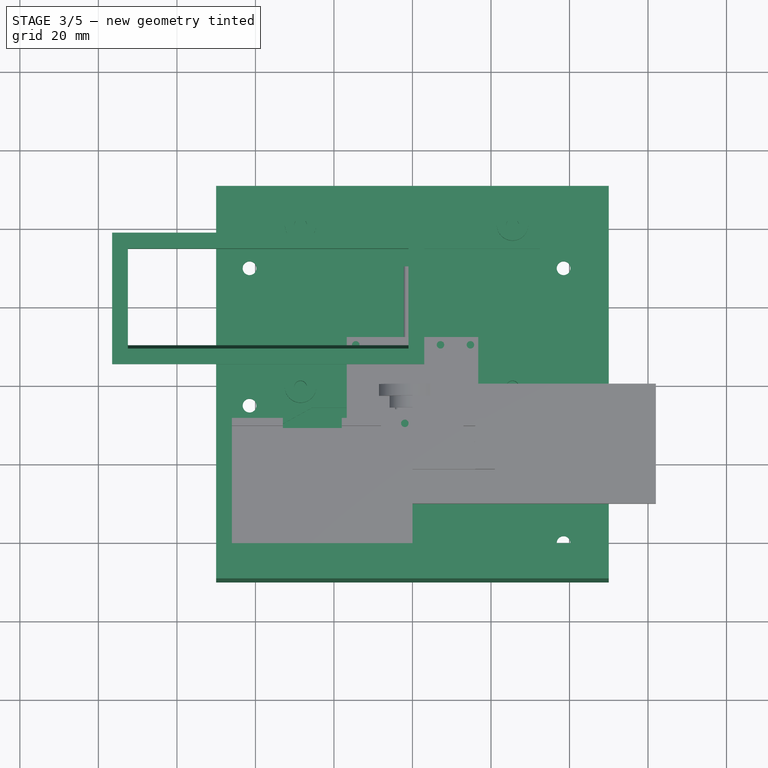
[diagram: stage 3 of 5 — top view after this stage's code; geometry added in this stage tinted green]
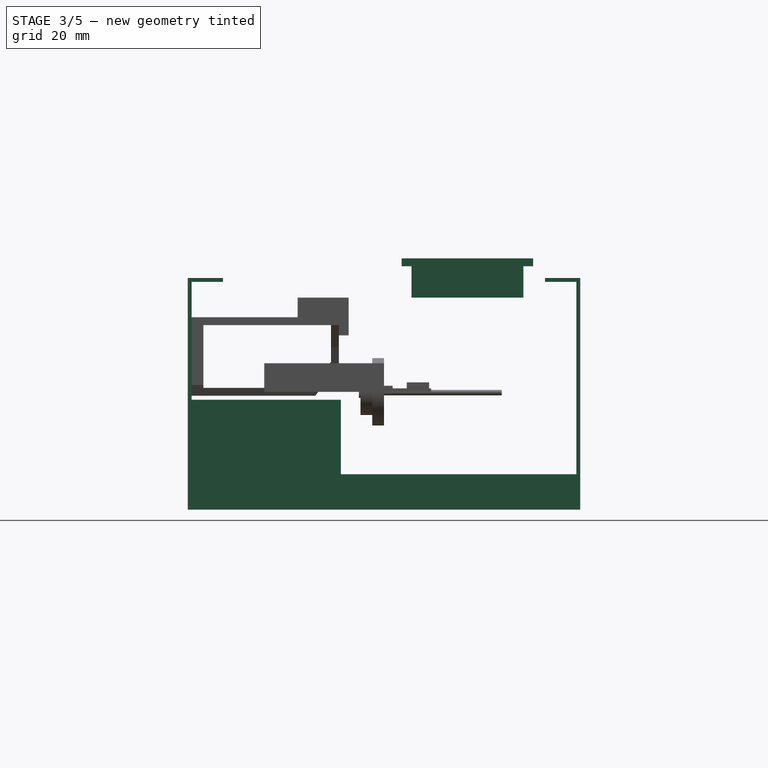
[diagram: stage 3 of 5 — right view after this stage's code; geometry added in this stage tinted green]
FEATURE [PartDesign::Body] Body004  label="PCB_analogique"
  Group = -> [Sketch011,Pad010]
  Origin = -> Origin004
  Placement = pos=(44.4,69.6,0) rot=(0,0,1;0rad)
  Tip = -> Pad010
FEATURE [Sketcher::SketchObject] Sketch012
  AttachmentOffset = pos=(0,0,24) rot=(0,0,1;0rad)
  FullyConstrained = true
  MapMode = 5
  Placement = pos=(0,0,24) rot=(0,0,1;0rad)
  Support = -> [XY_Plane005]
  sketch-geometry (8):
    g0: LineSegment StartX=-72.5 StartY=34 StartZ=0 EndX=-1 EndY=34 EndZ=0
    g1: LineSegment StartX=-1 StartY=34 StartZ=0 EndX=-1 EndY=8.5 EndZ=0
    g2: LineSegment StartX=-1 StartY=8.5 StartZ=0 EndX=-72.5 EndY=8.5 EndZ=0
    g3: LineSegment StartX=-72.5 StartY=8.5 StartZ=0 EndX=-72.5 EndY=34 EndZ=0
    g4: LineSegment StartX=-74 StartY=35.5 StartZ=0 EndX=0.5 EndY=35.5 EndZ=0
    g5: LineSegment StartX=0.5 StartY=35.5 StartZ=0 EndX=0.5 EndY=7 EndZ=0
    g6: LineSegment StartX=0.5 StartY=7 StartZ=0 EndX=-74 EndY=7 EndZ=0
    g7: LineSegment StartX=-74 StartY=7 StartZ=0 EndX=-74 EndY=35.5 EndZ=0
  constraints (26):
    c: Coincident(g0,g1)
    c: Coincident(g1,g2)
    c: Coincident(g2,g3)
    c: Coincident(g3,g0)
    c: Horizontal(g0)
    c: Horizontal(g2)
    c: Vertical(g1)
    c: Vertical(g3)
    c: DistanceX(g0,g0) = 71.5
    c: DistanceY(g1,g1) = 25.5
    c: Coincident(g4,g5)
    c: Coincident(g5,g6)
    c: Coincident(g6,g7)
    c: Coincident(g7,g4)
    c: Horizontal(g4)
    c: Horizontal(g6)
    c: Vertical(g5)
    c: Vertical(g7)
    c: DistanceX(g1,g5) = 1.5
    c: DistanceY(g5,g1) = 1.5
    c: DistanceX(g6,g2) = 1.5
    c: DistanceY(g0,g4) = 1.5
    c: DistanceX(g1,g-1) = 1
    c: DistanceY(g-1,g1) = 8.5
    c: DistanceX(g6,g6) = 74.5
    c: DistanceY(g7,g7) = 28.5
FEATURE [PartDesign::Pad] Pad011  label="murs"
  Direction = (0,0,1)
  Length = 8
  Length2 = 10
  Profile = -> Sketch012
  ReferenceAxis = -> Sketch012 [N_Axis]
  Type = 0
FEATURE [Sketcher::SketchObject] Sketch013
  ExternalGeometry = -> [Pad011]
  FullyConstrained = true
  MapMode = 5
  Placement = pos=(0,0,32) rot=(0,0,1;0rad)
  Support = -> [Pad011]
  sketch-geometry (8):
    g0: LineSegment StartX=-72.5 StartY=34 StartZ=0 EndX=-1 EndY=34 EndZ=0
    g1: LineSegment StartX=-1 StartY=34 StartZ=0 EndX=-1 EndY=8.5 EndZ=0
    g2: LineSegment StartX=-1 StartY=8.5 StartZ=0 EndX=-72.5 EndY=8.5 EndZ=0
    g3: LineSegment StartX=-72.5 StartY=8.5 StartZ=0 EndX=-72.5 EndY=34 EndZ=0
    g4: LineSegment StartX=-76.5 StartY=38 StartZ=0 EndX=3 EndY=38 EndZ=0
    g5: LineSegment StartX=3 StartY=38 StartZ=0 EndX=3 EndY=4.5 EndZ=0
    g6: LineSegment StartX=3 StartY=4.5 StartZ=0 EndX=-76.5 EndY=4.5 EndZ=0
    g7: LineSegment StartX=-76.5 StartY=4.5 StartZ=0 EndX=-76.5 EndY=38 EndZ=0
  constraints (24):
    c: Coincident(g0,g1)
    c: Coincident(g1,g2)
    c: Coincident(g2,g3)
    c: Coincident(g3,g0)
    c: Horizontal(g0)
    c: Horizontal(g2)
    c: Vertical(g1)
    c: Vertical(g3)
    c: Coincident(g0,g-3)
    c: Coincident(g1,g-4)
    c: Coincident(g4,g5)
    c: Coincident(g5,g6)
    c: Coincident(g6,g7)
    c: Coincident(g7,g4)
    c: Horizontal(g4)
    c: Horizontal(g6)
    c: Vertical(g5)
    c: Vertical(g7)
    c: DistanceX(g4,g0) = 4
    c: DistanceY(g0,g4) = 4
    c: DistanceX(g0,g4) = 4
    c: DistanceY(g5,g1) = 4
    c: DistanceX(g6,g6) = 79.5
    c: DistanceY(g7,g7) = 33.5
FEATURE [PartDesign::Pad] Pad012  label="cadre"
  BaseFeature = -> Pad011
  Direction = (0,0,1)
  Length = 2
  Length2 = 10
  Profile = -> Sketch013
  ReferenceAxis = -> Sketch013 [N_Axis]
  Type = 0
FEATURE [Sketcher::SketchObject] Sketch020
  AttachmentOffset = pos=(0,0,-30) rot=(0,0,1;0rad)
  FullyConstrained = true
  MapMode = 5
  Placement = pos=(0,0,-30) rot=(0,0,1;0rad)
  Support = -> [XY_Plane009]
  sketch-geometry (22):
    g0: GeomPoint X=0 Y=0 Z=0
    g1: LineSegment StartX=-50 StartY=50 StartZ=0 EndX=50 EndY=50 EndZ=0
    g2: LineSegment StartX=50 StartY=50 StartZ=0 EndX=50 EndY=-50 EndZ=0
    g3: LineSegment StartX=50 StartY=-50 StartZ=0 EndX=-50 EndY=-50 EndZ=0
    g4: LineSegment StartX=-50 StartY=-50 StartZ=0 EndX=-50 EndY=50 EndZ=0
    g5: LineSegment StartX=38.5 StartY=-40 StartZ=0 EndX=38.5 EndY=30 EndZ=0
    g6: LineSegment StartX=38.5 StartY=30 StartZ=0 EndX=-41.5 EndY=30 EndZ=0
    g7: LineSegment StartX=-42 StartY=-14.5 StartZ=0 EndX=16 EndY=-14.5 EndZ=0
    g8: LineSegment StartX=16 StartY=-14.5 StartZ=0 EndX=16 EndY=-30.5 EndZ=0
    g9: LineSegment StartX=16 StartY=-30.5 StartZ=0 EndX=-42 EndY=-33 EndZ=0
    g10: LineSegment StartX=-42 StartY=-33 StartZ=0 EndX=-42 EndY=-14.5 EndZ=0
    g11: GeomPoint X=-1.5 Y=-5 Z=0
    g12: Circle CenterX=-41.5 CenterY=30 CenterZ=0 NormalX=0 NormalY=0 NormalZ=1 AngleXU=0 Radius=1.75
    g13: Circle CenterX=38.5 CenterY=30 CenterZ=0 NormalX=0 NormalY=0 NormalZ=1 AngleXU=0 Radius=1.75
    g14: Circle CenterX=-42 CenterY=-14.5 CenterZ=0 NormalX=0 NormalY=0 NormalZ=1 AngleXU=0 Radius=2.15
    g15: Circle CenterX=-42 CenterY=-33 CenterZ=0 NormalX=0 NormalY=0 NormalZ=1 AngleXU=0 Radius=2.15
    g16: Circle CenterX=16 CenterY=-30.5 CenterZ=0 NormalX=0 NormalY=0 NormalZ=1 AngleXU=0 Radius=2.15
    g17: Circle CenterX=16 CenterY=-14.5 CenterZ=0 NormalX=0 NormalY=0 NormalZ=1 AngleXU=0 Radius=2.15
    g18: Circle CenterX=38.5 CenterY=-40 CenterZ=0 NormalX=0 NormalY=0 NormalZ=1 AngleXU=0 Radius=1.75
    g19: LineSegment StartX=-41.5 StartY=30 StartZ=0 EndX=-41.5 EndY=-5 EndZ=0
    g20: Circle CenterX=-41.5 CenterY=-5 CenterZ=0 NormalX=0 NormalY=0 NormalZ=1 AngleXU=0 Radius=1.75
    g21: Circle CenterX=38.5 CenterY=-5 CenterZ=0 NormalX=0 NormalY=0 NormalZ=1 AngleXU=0 Radius=1.75
  constraints (57):
    c: Coincident(g1,g2)
    c: Coincident(g2,g3)
    c: Coincident(g3,g4)
    c: Coincident(g4,g1)
    c: Horizontal(g1)
    c: Horizontal(g3)
    c: Vertical(g2)
    c: Vertical(g4)
    c: Symmetric(g1,g2,g0)
    c: DistanceX(g1,g1) = 100
    c: DistanceY(g4,g4) = 100
    c: Vertical(g5)
    c: Coincident(g5,g6)
    c: Horizontal(g6)
    c: Coincident(g7,g8)
    c: Coincident(g8,g9)
    c: Coincident(g9,g10)
    c: Coincident(g10,g7)
    c: Horizontal(g7)
    c: Vertical(g8)
    c: Vertical(g10)
    c: DistanceX(g6,g6) = 80
    c: DistanceY(g5,g5) = 70
    c: DistanceY(g6,g1) = 20
    c: DistanceX(g1,g6) = 8.5
    c: DistanceX(g3,g9) = 8
    c: DistanceY(g3,g9) = 17
    c: DistanceX(g7,g7) = 58
    c: DistanceY(g10,g10) = 18.5
    c: DistanceY(g8,g8) = 16
    c: Symmetric(g6,g5,g11)
    c: Coincident(g12,g6)
    c: Coincident(g13,g5)
    c: Coincident(g14,g7)
    c: Coincident(g15,g9)
    c: Coincident(g16,g8)
    c: Coincident(g17,g7)
    c: Coincident(g18,g5)
    c: Coincident(g19,g12)
    c: Vertical(g19)
    c: DistanceY(g19,g19) = 35
    c: Coincident(g20,g19)
    c: Equal(g20,g12)
    c: Equal(g20,g13)
    c: Equal(g20,g18)
    c: Diameter(g20) = 3.5
    c: Equal(g14,g15)
    c: Equal(g15,g17)
    c: Equal(g17,g16)
    c: Diameter(g15) = 4.3
    c: DistanceY(g-1,g1) = 50
    c: Coincident(g0,g-1)
    c: DistanceY(g0,g12) = 30
    c: DistanceX(g12,g0) = 41.5
    c: PointOnObject(g21,g5)
    c: Horizontal(g20,g21)
    c: Equal(g20,g21)
FEATURE [PartDesign::Pad] Pad018  label="fond"
  Direction = (0,0,1)
  Length = 1
  Length2 = 10
  Profile = -> Sketch020
  ReferenceAxis = -> Sketch020 [N_Axis]
  Type = 0
FEATURE [Sketcher::SketchObject] Sketch021
  AttachmentOffset = pos=(0,0,-30) rot=(0,0,1;0rad)
  FullyConstrained = true
  MapMode = 5
  Placement = pos=(0,0,-30) rot=(0,0,1;0rad)
  Support = -> [XY_Plane009]
  sketch-geometry (4):
    g0: LineSegment StartX=-50 StartY=-50 StartZ=0 EndX=20 EndY=-50 EndZ=0
    g1: LineSegment StartX=20 StartY=-50 StartZ=0 EndX=20 EndY=-11 EndZ=0
    g2: LineSegment StartX=20 StartY=-11 StartZ=0 EndX=-50 EndY=-11 EndZ=0
    g3: LineSegment StartX=-50 StartY=-11 StartZ=0 EndX=-50 EndY=-50 EndZ=0
  constraints (12):
    c: Coincident(g0,g1)
    c: Coincident(g1,g2)
    c: Coincident(g2,g3)
    c: Coincident(g3,g0)
    c: Horizontal(g0)
    c: Horizontal(g2)
    c: Vertical(g1)
    c: Vertical(g3)
    c: DistanceY(g3,g3) = 39
    c: DistanceX(g0,g0) = 70
    c: DistanceX(g0,g-1) = 50
    c: DistanceY(g0,g-1) = 50
FEATURE [PartDesign::Pad] Pad019  label="zone_switch"
  BaseFeature = -> Pad018
  Direction = (0,0,1)
  Length = 28
  Length2 = 10
  Profile = -> Sketch021
  ReferenceAxis = -> Sketch021 [N_Axis]
  Type = 0
FEATURE [Sketcher::SketchObject] Sketch022
  AttachmentOffset = pos=(0,0,-29) rot=(0,0,1;0rad)
  FullyConstrained = false
  MapMode = 5
  Placement = pos=(0,0,-29) rot=(0,0,1;0rad)
  Support = -> [XY_Plane010]
  sketch-geometry (42):
    g0: GeomPoint X=-1.5 Y=-5 Z=0
    g1: LineSegment StartX=-41.5 StartY=30 StartZ=0 EndX=38.5 EndY=30 EndZ=0
    g2: LineSegment StartX=38.5 StartY=30 StartZ=0 EndX=38.5 EndY=-40 EndZ=0
    g3: LineSegment StartX=-47.5 StartY=32.7828 StartZ=0 EndX=-30.6978 EndY=47 EndZ=0
    g4: LineSegment StartX=-30.6978 StartY=47 StartZ=0 EndX=27.6978 EndY=47 EndZ=0
    g5: LineSegment StartX=27.6978 StartY=47 StartZ=0 EndX=44.5 EndY=32.7828 EndZ=0
    g6: LineSegment StartX=44.5 StartY=32.7828 StartZ=0 EndX=44.5 EndY=-11 EndZ=0
    g7: LineSegment StartX=-47.5 StartY=-11 StartZ=0 EndX=-47.5 EndY=32.7828 EndZ=0
    g8: LineSegment StartX=-35.5 StartY=35 StartZ=0 EndX=32.5 EndY=35 EndZ=0
    g9: LineSegment StartX=32.5 StartY=35 StartZ=0 EndX=32.5 EndY=5.7 EndZ=0
    g10: LineSegment StartX=32.5 StartY=5.7 StartZ=0 EndX=-35.5 EndY=5.7 EndZ=0
    g11: LineSegment StartX=-35.5 StartY=5.7 StartZ=0 EndX=-35.5 EndY=35 EndZ=0
    g12: LineSegment StartX=-41.5 StartY=30 StartZ=0 EndX=-41.5 EndY=-5 EndZ=0
    g13: LineSegment StartX=-28.5 StartY=41 StartZ=0 EndX=25.5 EndY=41 EndZ=0
    g14: LineSegment StartX=25.5 StartY=41 StartZ=0 EndX=25.5 EndY=-0.3 EndZ=0
    g15: LineSegment StartX=25.5 StartY=-0.3 StartZ=0 EndX=-28.5 EndY=-0.3 EndZ=0
    g16: LineSegment StartX=-28.5 StartY=-0.3 StartZ=0 EndX=-28.5 EndY=41 EndZ=0
    g17: GeomPoint X=-45.8 Y=36.3 Z=0
    g18: Circle CenterX=38.5 CenterY=30 CenterZ=0 NormalX=0 NormalY=0 NormalZ=1 AngleXU=0 Radius=1.75
    g19: Circle CenterX=-41.5 CenterY=-5 CenterZ=0 NormalX=0 NormalY=0 NormalZ=1 AngleXU=0 Radius=1.75
    g20: Circle CenterX=-41.5 CenterY=30 CenterZ=0 NormalX=0 NormalY=0 NormalZ=1 AngleXU=0 Radius=1.75
    g21: Circle CenterX=-41.5 CenterY=-5 CenterZ=0 NormalX=0 NormalY=0 NormalZ=1 AngleXU=0 Radius=6
    g22: Circle CenterX=38.5 CenterY=-5 CenterZ=0 NormalX=0 NormalY=0 NormalZ=1 AngleXU=0 Radius=6
    g23: Circle CenterX=-41.5 CenterY=30 CenterZ=0 NormalX=0 NormalY=0 NormalZ=1 AngleXU=0 Radius=6
    g24: Circle CenterX=38.5 CenterY=30 CenterZ=0 NormalX=0 NormalY=0 NormalZ=1 AngleXU=0 Radius=6
    g25: LineSegment StartX=-41.5 StartY=30 StartZ=0 EndX=-28.5 EndY=41 EndZ=0
    g26: LineSegment StartX=25.5 StartY=41 StartZ=0 EndX=38.5 EndY=30 EndZ=0
    g27: Circle CenterX=-28.5 CenterY=41 CenterZ=0 NormalX=0 NormalY=0 NormalZ=1 AngleXU=0 Radius=6
    g28: Circle CenterX=25.5 CenterY=41 CenterZ=0 NormalX=0 NormalY=0 NormalZ=1 AngleXU=0 Radius=6
    g29: Circle CenterX=-28.5 CenterY=-0.3 CenterZ=0 NormalX=0 NormalY=0 NormalZ=1 AngleXU=0 Radius=6
    g30: Circle CenterX=25.5 CenterY=-0.3 CenterZ=0 NormalX=0 NormalY=0 NormalZ=1 AngleXU=0 Radius=6
    g31: Circle CenterX=38.5 CenterY=-5 CenterZ=0 NormalX=0 NormalY=0 NormalZ=1 AngleXU=0 Radius=1.75
    g32: LineSegment StartX=-35.5001 StartY=-11 StartZ=0 EndX=-47.5 EndY=-11 EndZ=0
    g33: LineSegment StartX=-35.5001 StartY=-11 StartZ=0 EndX=-25.6076 EndY=-5.55678 EndZ=0
    g34: LineSegment StartX=-25.6076 StartY=-5.55678 StartZ=0 EndX=-25.6076 EndY=-5.55678 EndZ=0
    g35: LineSegment StartX=-25.6076 StartY=-5.55678 StartZ=0 EndX=22.6076 EndY=-5.55678 EndZ=0
    g36: LineSegment StartX=22.6076 StartY=-5.55678 StartZ=0 EndX=32.5 EndY=-11 EndZ=0
    g37: LineSegment StartX=32.5 StartY=-11 StartZ=0 EndX=44.5 EndY=-11 EndZ=0
    g38: Circle CenterX=-28.5 CenterY=41 CenterZ=0 NormalX=0 NormalY=0 NormalZ=1 AngleXU=0 Radius=1.6
    g39: Circle CenterX=25.5 CenterY=41 CenterZ=0 NormalX=0 NormalY=0 NormalZ=1 AngleXU=0 Radius=1.6
    g40: Circle CenterX=-28.5 CenterY=-0.3 CenterZ=0 NormalX=0 NormalY=0 NormalZ=1 AngleXU=0 Radius=1.6
    g41: Circle CenterX=25.5 CenterY=-0.3 CenterZ=0 NormalX=0 NormalY=0 NormalZ=1 AngleXU=0 Radius=1.6
  constraints (106):
    c: Horizontal(g1)
    c: Coincident(g1,g2)
    c: Vertical(g2)
    c: DistanceX(g1,g1) = 80
    c: DistanceY(g2,g2) = 70
    c: Symmetric(g1,g2,g0)
    c: Coincident(g3,g4)
    c: Horizontal(g4)
    c: Coincident(g4,g5)
    c: Coincident(g5,g6)
    c: Vertical(g6)
    c: Coincident(g7,g3)
    c: Vertical(g7)
    c: Horizontal(g8)
    c: Coincident(g8,g9)
    c: Vertical(g9)
    c: Coincident(g9,g10)
    c: Horizontal(g10)
    c: Vertical(g11)
    c: Coincident(g11,g8)
    c: Coincident(g12,g1)
    c: Vertical(g12)
    c: DistanceY(g12,g12) = 35
    c: Coincident(g7,g32)
    c: Coincident(g13,g14)
    c: Coincident(g14,g15)
    c: Coincident(g15,g16)
    c: Coincident(g16,g13)
    c: Horizontal(g13)
    c: Horizontal(g15)
    c: Vertical(g14)
    c: Vertical(g16)
    c: DistanceX(g13,g13) = 54
    c: DistanceY(g14,g14) = 41.3
    c: Coincident(g18,g1)
    c: Coincident(g19,g12)
    c: Coincident(g20,g1)
    c: Equal(g20,g19)
    c: Coincident(g21,g19)
    c: Coincident(g23,g20)
    c: Coincident(g24,g18)
    c: Equal(g21,g23)
    c: Equal(g23,g22)
    c: Equal(g22,g24)
    c: Diameter(g22) = 12
    c: Tangent(g7,g21)
    c: Tangent(g6,g24)
    c: Tangent(g5,g24)
    c: Tangent(g3,g23)
    c: Coincident(g10,g11)
    c: Coincident(g25,g20)
    c: Coincident(g25,g13)
    c: Coincident(g26,g13)
    c: Coincident(g26,g18)
    c: Equal(g25,g26)
    c: Tangent(g23,g11)
    c: Tangent(g9,g24)
    c: Coincident(g27,g13)
    c: Coincident(g28,g13)
    c: Diameter(g27) = 12
    c: Equal(g28,g27)
    c: Tangent(g28,g5)
    c: Tangent(g3,g27)
    c: Tangent(g4,g27)
    c: Tangent(g27,g8)
    c: Coincident(g29,g15)
    c: Coincident(g30,g14)
    c: Equal(g29,g27)
    c: Equal(g27,g30)
    c: Tangent(g10,g29)
    c: DistanceY(g-1,g14) = -0.3
    c: DistanceX(g14,g-1) = -25.5
    c: DistanceX(g20,g-1) = 41.5
    c: DistanceY(g-1,g20) = 30
    c: DistanceY(g-1,g4) = 47
    c: PointOnObject(g22,g2)
    c: Horizontal(g19,g22)
    c: Coincident(g31,g22)
    c: Equal(g31,g19)
    c: Diameter(g31) = 3.5
    c: Horizontal(g32)
    c: Tangent(g21,g32)
    c: Coincident(g32,g33)
    c: Coincident(g33,g34)
    c: Horizontal(g34)
    c: Coincident(g34,g35)
    c: PointOnObject(g34,g29)
    c: PointOnObject(g35,g30)
    c: Horizontal(g35)
    c: Coincident(g35,g36)
    c: Vertical(g36,g9)
    c: Coincident(g37,g36)
    c: Coincident(g37,g6)
    c: Horizontal(g37)
    c: Tangent(g37,g22)
    c: Tangent(g33,g29) = -1.5708
    c: Tangent(g36,g30)
    c: Equal(g18,g31)
    c: Coincident(g38,g13)
    c: Coincident(g39,g13)
    c: Coincident(g40,g15)
    c: Coincident(g41,g14)
    c: Equal(g40,g38)
    c: Equal(g38,g39)
    c: Equal(g39,g41)
    c: Diameter(g39) = 3.2
FEATURE [PartDesign::Pad] Pad020  label="base2"
  Direction = (0,0,1)
  Length = 2
  Length2 = 10
  Profile = -> Sketch022
  ReferenceAxis = -> Sketch022 [N_Axis]
  Type = 0
FEATURE [Sketcher::SketchObject] Sketch023
  AttachmentOffset = pos=(0,0,-29) rot=(0,0,1;0rad)
  FullyConstrained = true
  MapMode = 5
  Placement = pos=(0,0,-29) rot=(0,0,1;0rad)
  Support = -> [XY_Plane010]
  sketch-geometry (12):
    g0: LineSegment StartX=-28.5 StartY=41 StartZ=0 EndX=25.5 EndY=41 EndZ=0
    g1: LineSegment StartX=25.5 StartY=41 StartZ=0 EndX=25.5 EndY=-0.3 EndZ=0
    g2: LineSegment StartX=25.5 StartY=-0.3 StartZ=0 EndX=-28.5 EndY=-0.3 EndZ=0
    g3: LineSegment StartX=-28.5 StartY=-0.3 StartZ=0 EndX=-28.5 EndY=41 EndZ=0
    g4: Circle CenterX=-28.5 CenterY=41 CenterZ=0 NormalX=0 NormalY=0 NormalZ=1 AngleXU=0 Radius=1.6
    g5: Circle CenterX=25.5 CenterY=41 CenterZ=0 NormalX=0 NormalY=0 NormalZ=1 AngleXU=0 Radius=1.6
    g6: Circle CenterX=25.5 CenterY=-0.3 CenterZ=0 NormalX=0 NormalY=0 NormalZ=1 AngleXU=0 Radius=1.6
    g7: Circle CenterX=-28.5 CenterY=-0.3 CenterZ=0 NormalX=0 NormalY=0 NormalZ=1 AngleXU=0 Radius=1.6
    g8: Circle CenterX=-28.5 CenterY=-0.3 CenterZ=0 NormalX=0 NormalY=0 NormalZ=1 AngleXU=0 Radius=4
    g9: Circle CenterX=-28.5 CenterY=41 CenterZ=0 NormalX=0 NormalY=0 NormalZ=1 AngleXU=0 Radius=4
    g10: Circle CenterX=25.5 CenterY=41 CenterZ=0 NormalX=0 NormalY=0 NormalZ=1 AngleXU=0 Radius=4
    g11: Circle CenterX=25.5 CenterY=-0.3 CenterZ=0 NormalX=0 NormalY=0 NormalZ=1 AngleXU=0 Radius=4
  constraints (28):
    c: Coincident(g0,g1)
    c: Coincident(g1,g2)
    c: Coincident(g2,g3)
    c: Coincident(g3,g0)
    c: Horizontal(g0)
    c: Horizontal(g2)
    c: Vertical(g1)
    c: Vertical(g3)
    c: DistanceX(g0,g0) = 54
    c: DistanceY(g1,g1) = 41.3
    c: Coincident(g4,g0)
    c: Coincident(g5,g0)
    c: Coincident(g6,g1)
    c: Coincident(g7,g2)
    c: Coincident(g8,g7)
    c: Coincident(g9,g4)
    c: Coincident(g10,g5)
    c: Coincident(g11,g6)
    c: Equal(g7,g4)
    c: Equal(g4,g5)
    c: Equal(g5,g6)
    c: Diameter(g6) = 3.2
    c: Equal(g10,g9)
    c: Equal(g9,g8)
    c: Equal(g8,g11)
    c: Diameter(g11) = 8
    c: DistanceY(g6,g-1) = 0.3
    c: DistanceX(g-1,g6) = 25.5
FEATURE [PartDesign::Pad] Pad021  label="support_pcb2"
  BaseFeature = -> Pad020
  Direction = (0,0,1)
  Length = 6.5
  Length2 = 10
  Profile = -> Sketch023
  ReferenceAxis = -> Sketch023 [N_Axis]
  Type = 0
FEATURE [Sketcher::SketchObject] Sketch025
  FullyConstrained = true
  MapMode = 5
  Placement = pos=(0,0,-30) rot=(1,0,0;3.14159rad)
  Support = -> [Pad019]
  sketch-geometry (8):
    g0: LineSegment StartX=-50 StartY=50 StartZ=0 EndX=50 EndY=50 EndZ=0
    g1: LineSegment StartX=50 StartY=-50 StartZ=0 EndX=-50 EndY=-50 EndZ=0
    g2: LineSegment StartX=-50 StartY=49 StartZ=0 EndX=50 EndY=49 EndZ=0
    g3: LineSegment StartX=50 StartY=-49 StartZ=0 EndX=-50 EndY=-49 EndZ=0
    g4: LineSegment StartX=50 StartY=50 StartZ=0 EndX=50 EndY=49 EndZ=0
    g5: LineSegment StartX=-50 StartY=50 StartZ=0 EndX=-50 EndY=49 EndZ=0
    g6: LineSegment StartX=50 StartY=-49 StartZ=0 EndX=50 EndY=-50 EndZ=0
    g7: LineSegment StartX=-50 StartY=-49 StartZ=0 EndX=-50 EndY=-50 EndZ=0
  constraints (23):
    c: Horizontal(g0)
    c: Horizontal(g1)
    c: DistanceX(g0,g0) = 100
    c: DistanceY(g1,g0) = 100
    c: Horizontal(g2)
    c: Horizontal(g3)
    c: Coincident(g4,g0)
    c: Coincident(g4,g2)
    c: Coincident(g5,g0)
    c: Coincident(g5,g2)
    c: Vertical(g5)
    c: Vertical(g4)
    c: Coincident(g6,g3)
    c: Coincident(g6,g1)
    c: Vertical(g6)
    c: Coincident(g7,g3)
    c: Coincident(g7,g1)
    c: Vertical(g7)
    c: Symmetric(g0,g1,g-1)
    c: Vertical(g2,g3)
    c: Vertical(g2,g3)
    c: DistanceY(g5,g5) = 1
    c: DistanceY(g7,g7) = 1
FEATURE [PartDesign::Pad] Pad022  label="parois_H"
  BaseFeature = -> Pad019
  Direction = (0,0,-1)
  Length = 58
  Length2 = 10
  Profile = -> Sketch025
  ReferenceAxis = -> Sketch025 [N_Axis]
  Reversed = true
  Type = 0
FEATURE [PartDesign::Body] Body010  label="support_B"
  Group = -> [Sketch022,Pad020,Sketch023,Pad021,Sketch028,Pad026]
  Origin = -> Origin010
  Tip = -> Pad026
FEATURE [Sketcher::SketchObject] Sketch029
  AttachmentOffset = pos=(0,0,29) rot=(0,0,1;0rad)
  FullyConstrained = true
  MapMode = 5
  Placement = pos=(0,0,29) rot=(0,0,1;0rad)
  Support = -> [XY_Plane009]
  sketch-geometry (8):
    g0: LineSegment StartX=-50 StartY=50 StartZ=0 EndX=50 EndY=50 EndZ=0
    g1: LineSegment StartX=50 StartY=50 StartZ=0 EndX=50 EndY=41 EndZ=0
    g2: LineSegment StartX=50 StartY=41 StartZ=0 EndX=-50 EndY=41 EndZ=0
    g3: LineSegment StartX=-50 StartY=41 StartZ=0 EndX=-50 EndY=50 EndZ=0
    g4: LineSegment StartX=-50 StartY=-41 StartZ=0 EndX=50 EndY=-41 EndZ=0
    g5: LineSegment StartX=50 StartY=-41 StartZ=0 EndX=50 EndY=-50 EndZ=0
    g6: LineSegment StartX=50 StartY=-50 StartZ=0 EndX=-50 EndY=-50 EndZ=0
    g7: LineSegment StartX=-50 StartY=-50 StartZ=0 EndX=-50 EndY=-41 EndZ=0
  constraints (22):
    c: Coincident(g0,g1)
    c: Coincident(g1,g2)
    c: Coincident(g2,g3)
    c: Coincident(g3,g0)
    c: Horizontal(g2)
    c: Vertical(g1)
    c: Vertical(g3)
    c: Coincident(g4,g5)
    c: Coincident(g5,g6)
    c: Coincident(g6,g7)
    c: Coincident(g7,g4)
    c: Horizontal(g4)
    c: Horizontal(g6)
    c: Vertical(g5)
    c: Vertical(g7)
    c: DistanceY(g1,g1) = 9
    c: DistanceX(g0,g0) = 100
    c: Symmetric(g0,g0,g-2)
    c: Vertical(g4,g1)
    c: Symmetric(g2,g4,g-1)
    c: DistanceY(g5,g0) = 100
    c: Equal(g1,g5)
FEATURE [PartDesign::Pad] Pad027  label="dessus"
  BaseFeature = -> Pad022
  Direction = (0,0,1)
  Length = 1
  Length2 = 10
  Profile = -> Sketch029
  ReferenceAxis = -> Sketch029 [N_Axis]
  Reversed = true
  Type = 0
FEATURE [Sketcher::SketchObject] Sketch030
  AttachmentOffset = pos=(0,0,-30) rot=(0,0,1;0rad)
  FullyConstrained = true
  MapMode = 5
  Placement = pos=(0,0,-30) rot=(0,0,1;0rad)
  Support = -> [XY_Plane009]
  sketch-geometry (8):
    g0: LineSegment StartX=-50 StartY=50 StartZ=0 EndX=-49 EndY=50 EndZ=0
    g1: LineSegment StartX=-49 StartY=50 StartZ=0 EndX=-49 EndY=-50 EndZ=0
    g2: LineSegment StartX=-49 StartY=-50 StartZ=0 EndX=-50 EndY=-50 EndZ=0
    g3: LineSegment StartX=-50 StartY=-50 StartZ=0 EndX=-50 EndY=50 EndZ=0
    g4: LineSegment StartX=49 StartY=50 StartZ=0 EndX=50 EndY=50 EndZ=0
    g5: LineSegment StartX=50 StartY=50 StartZ=0 EndX=50 EndY=-50 EndZ=0
    g6: LineSegment StartX=50 StartY=-50 StartZ=0 EndX=49 EndY=-50 EndZ=0
    g7: LineSegment StartX=49 StartY=-50 StartZ=0 EndX=49 EndY=50 EndZ=0
  constraints (22):
    c: Coincident(g0,g1)
    c: Coincident(g1,g2)
    c: Coincident(g2,g3)
    c: Coincident(g3,g0)
    c: Horizontal(g0)
    c: Horizontal(g2)
    c: Vertical(g1)
    c: Coincident(g4,g5)
    c: Coincident(g5,g6)
    c: Coincident(g6,g7)
    c: Coincident(g7,g4)
    c: Horizontal(g4)
    c: Horizontal(g6)
    c: Vertical(g5)
    c: Vertical(g7)
    c: Symmetric(g0,g4,g-2)
    c: Symmetric(g2,g0,g-1)
    c: DistanceY(g3,g3) = 100
    c: DistanceX(g0,g4) = 100
    c: DistanceX(g0,g0) = 1
    c: DistanceX(g4,g4) = 1
    c: Horizontal(g2,g5)
FEATURE [PartDesign::Pad] Pad028  label="paraois_B"
  BaseFeature = -> Pad027
  Direction = (0,0,1)
  Length = 9
  Length2 = 10
  Profile = -> Sketch030
  ReferenceAxis = -> Sketch030 [N_Axis]
  Type = 0
FEATURE [PartDesign::Body] Body009  label="box"
  Group = -> [Sketch020,Pad018,Sketch021,Pad019,Sketch025,Pad022,Sketch029,Pad027,Sketch030,Pad028]
  Origin = -> Origin009
  Tip = -> Pad028
FEATURE [Sketcher::SketchObject] Sketch031
  AttachmentOffset = pos=(0,24,0) rot=(0,0,1;0rad)
  FullyConstrained = true
  MapMode = 5
  Placement = pos=(-5.3e-15,5.3e-15,24) rot=(0.57735,0.57735,0.57735;2.0944rad)
  Support = -> [YZ_Plane005]
  sketch-geometry (3):
    g0: LineSegment StartX=8.5 StartY=0 StartZ=0 EndX=8.5 EndY=10 EndZ=0
    g1: LineSegment StartX=8.5 StartY=10 StartZ=0 EndX=9.5 EndY=0 EndZ=0
    g2: LineSegment StartX=9.5 StartY=0 StartZ=0 EndX=8.5 EndY=0 EndZ=0
  constraints (9):
    c: Vertical(g0)
    c: Coincident(g0,g1)
    c: Coincident(g1,g2)
    c: Coincident(g2,g0)
    c: Horizontal(g2)
    c: DistanceX(g-1,g0) = 8.5
    c: DistanceX(g2,g2) = 1
    c: DistanceY(g0,g0) = 10
    c: PointOnObject(g0,g-1)
FEATURE [PartDesign::Pad] Pad029  label="biseau"
  BaseFeature = -> Pad012
  Direction = (1,-2e-16,3e-16)
  Length = 73
  Length2 = 10
  Profile = -> Sketch031
  ReferenceAxis = -> Sketch031 [N_Axis]
  Reversed = true
  Type = 0
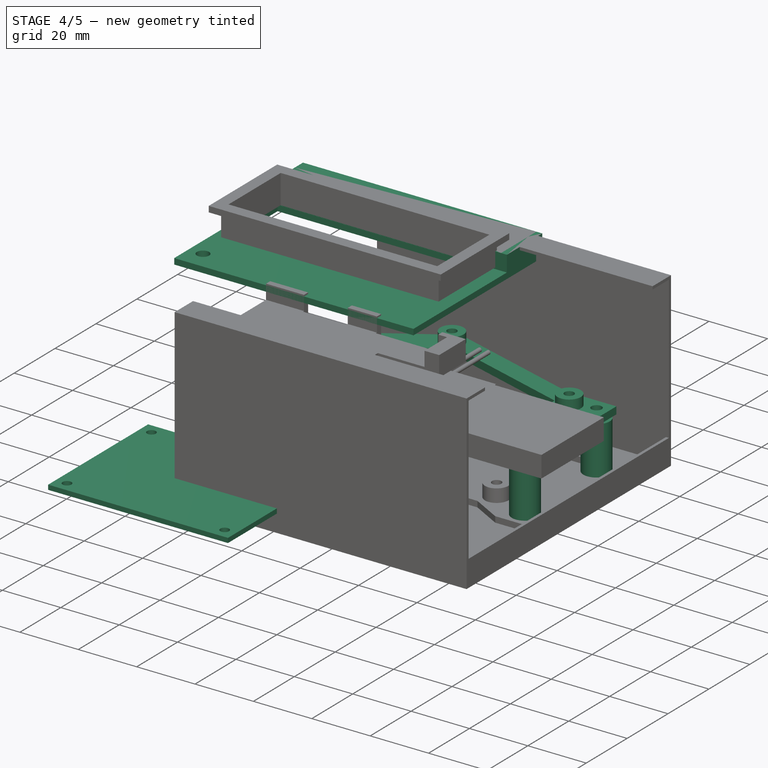
[diagram: stage 4 of 5 — iso view after this stage's code; geometry added in this stage tinted green]
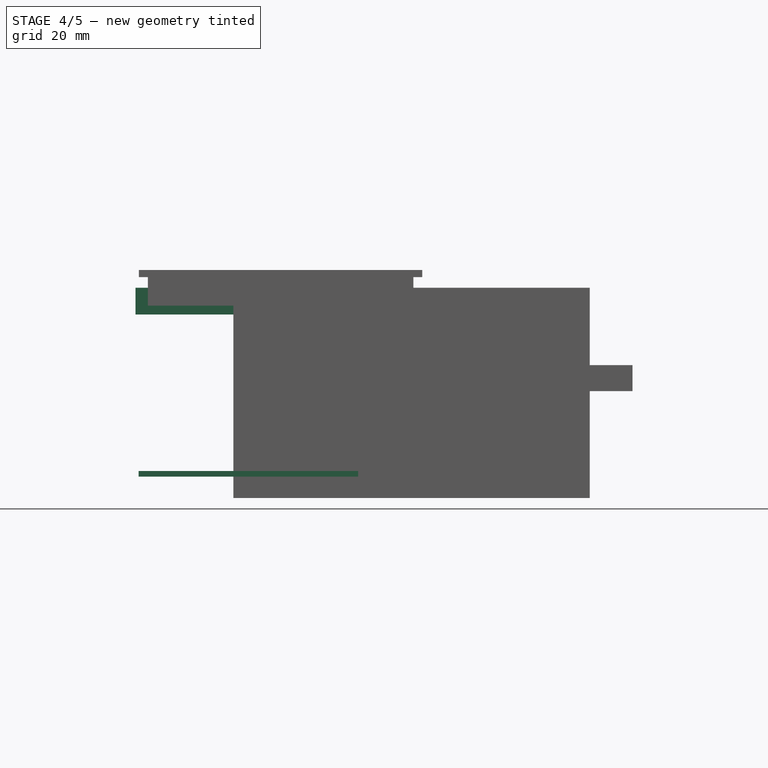
[diagram: stage 4 of 5 — front view after this stage's code; geometry added in this stage tinted green]
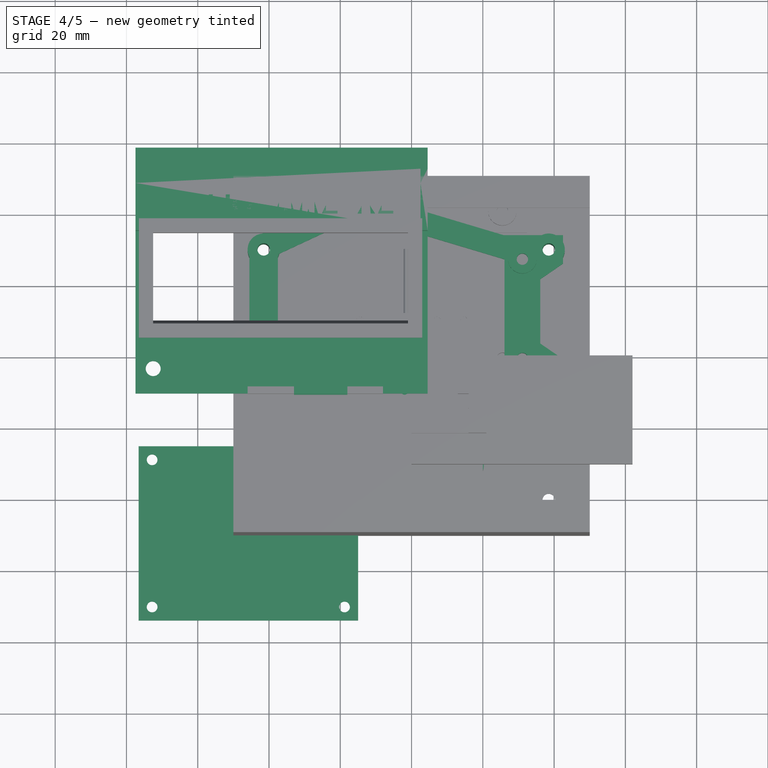
[diagram: stage 4 of 5 — top view after this stage's code; geometry added in this stage tinted green]
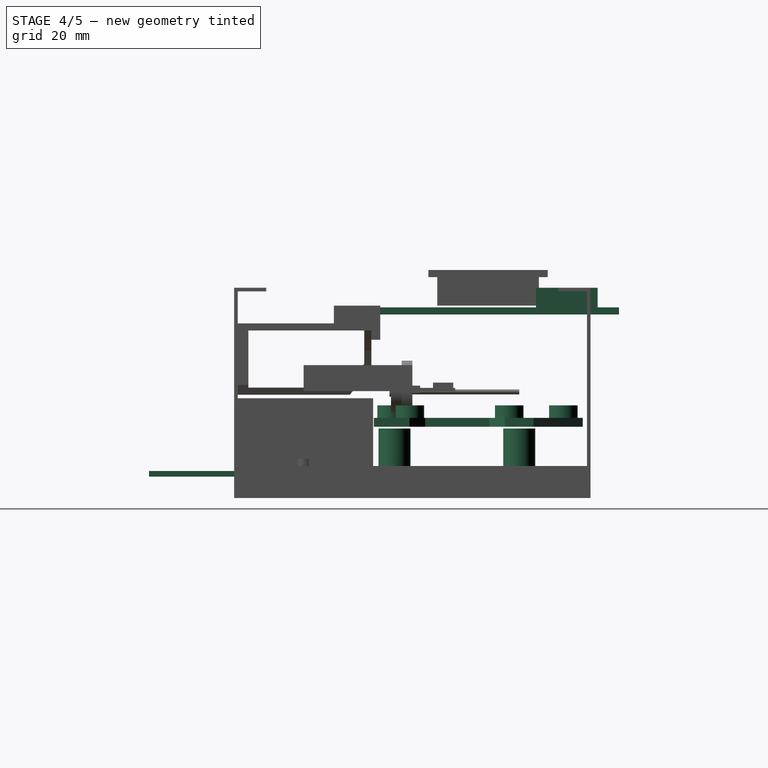
[diagram: stage 4 of 5 — right view after this stage's code; geometry added in this stage tinted green]
FEATURE [PartDesign::Body] Body001  label="shield_LCD"
  Group = -> [Sketch001,Pad001,Sketch004,Pad004,Sketch005,Pad005,Sketch006,Pad006]
  Origin = -> Origin001
  Placement = pos=(31,-0.6,0) rot=(0,0,1;0rad)
  Tip = -> Pad006
FEATURE [Sketcher::SketchObject] Sketch007
  FullyConstrained = true
  MapMode = 5
  Placement = pos=(0,0,0) rot=(0.57735,0.57735,0.57735;2.0944rad)
  Support = -> [YZ_Plane003]
  sketch-geometry (17):
    g0: LineSegment StartX=48 StartY=27 StartZ=0 EndX=36.7 EndY=27 EndZ=0
    g1: LineSegment StartX=36.7 StartY=27 StartZ=0 EndX=36.7 EndY=21.5 EndZ=0
    g2: LineSegment StartX=36.7 StartY=21.5 StartZ=0 EndX=-11 EndY=21.5 EndZ=0
    g3: LineSegment StartX=-11 StartY=21.5 StartZ=0 EndX=-11 EndY=23.5 EndZ=0
    g4: LineSegment StartX=-11 StartY=23.5 StartZ=0 EndX=34.7 EndY=23.5 EndZ=0
    g5: LineSegment StartX=34.7 StartY=23.5 StartZ=0 EndX=34.7 EndY=29 EndZ=0
    g6: LineSegment StartX=34.7 StartY=29 StartZ=0 EndX=48 EndY=29 EndZ=0
    g7: LineSegment StartX=48 StartY=29 StartZ=0 EndX=48 EndY=27 EndZ=0
    g8: LineSegment StartX=34.7 StartY=23.5 StartZ=0 EndX=36.7 EndY=23.5 EndZ=0
    g9: LineSegment StartX=48 StartY=27 StartZ=0 EndX=50 EndY=27 EndZ=0
    g10: LineSegment StartX=50 StartY=27 StartZ=0 EndX=50 EndY=21.5 EndZ=0
    g11: LineSegment StartX=50 StartY=21.5 StartZ=0 EndX=58 EndY=21.5 EndZ=0
    g12: LineSegment StartX=58 StartY=21.5 StartZ=0 EndX=58 EndY=23.5 EndZ=0
    g13: LineSegment StartX=58 StartY=23.5 StartZ=0 EndX=52 EndY=23.5 EndZ=0
    g14: LineSegment StartX=52 StartY=23.5 StartZ=0 EndX=52 EndY=29 EndZ=0
    g15: LineSegment StartX=52 StartY=29 StartZ=0 EndX=48 EndY=29 EndZ=0
    g16: LineSegment StartX=50 StartY=27 StartZ=0 EndX=52 EndY=27 EndZ=0
  constraints (51):
    c: Horizontal(g0)
    c: Coincident(g0,g1)
    c: Vertical(g1)
    c: Coincident(g1,g2)
    c: Horizontal(g2)
    c: Coincident(g2,g3)
    c: Coincident(g3,g4)
    c: Horizontal(g4)
    c: Coincident(g4,g5)
    c: Coincident(g5,g6)
    c: Horizontal(g6)
    c: Coincident(g6,g7)
    c: Coincident(g7,g0)
    c: Vertical(g7)
    c: Vertical(g5)
    c: Vertical(g3)
    c: Coincident(g8,g4)
    c: PointOnObject(g8,g1)
    c: Horizontal(g8)
    c: Equal(g3,g8)
    c: Equal(g8,g7)
    c: DistanceY(g3,g3) = 2
    c: DistanceY(g-1,g0) = 27
    c: DistanceY(g-1,g1) = 21.5
    c: DistanceX(g-2,g5) = 34.7
    c: DistanceX(g-2,g3) = -11
    c: DistanceX(g-2,g6) = 48
    c: Coincident(g0,g9)
    c: Coincident(g9,g10)
    c: Vertical(g10)
    c: Coincident(g10,g11)
    c: Horizontal(g11)
    c: Coincident(g11,g12)
    c: Coincident(g12,g13)
    c: Coincident(g13,g14)
    c: Vertical(g14)
    c: Coincident(g14,g15)
    c: Coincident(g15,g6)
    c: Horizontal(g15)
    c: Horizontal(g9)
    c: Horizontal(g1,g10)
    c: Horizontal(g13)
    c: Horizontal(g8,g13)
    c: Vertical(g12)
    c: Coincident(g16,g9)
    c: PointOnObject(g16,g14)
    c: Horizontal(g16)
    c: Equal(g16,g7)
    c: DistanceX(g9,g9) = 2
    c: DistanceX(g11,g11) = 8
    c: DistanceX(g3,g12) = 69
FEATURE [PartDesign::Pad] Pad007
  Direction = (1,-2e-16,3e-16)
  Length = 2.5
  Length2 = 77.46
  Placement = pos=(0,0,0) rot=(0.57735,0.57735,0.57735;2.0944rad)
  Profile = -> Sketch007
  ReferenceAxis = -> Sketch007 [N_Axis]
  Type = 4
FEATURE [Sketcher::SketchObject] Sketch008
  FullyConstrained = true
  MapMode = 5
  Placement = pos=(-6.6e-15,1.03e-14,23.5) rot=(0,0,-1;1.5708rad)
  Support = -> [Pad007]
  sketch-geometry (5):
    g0: LineSegment StartX=-8.1549 StartY=-1.00913 StartZ=0 EndX=-34.6549 EndY=-1.00913 EndZ=0
    g1: LineSegment StartX=-34.6549 StartY=-1.00913 StartZ=0 EndX=-34.6549 EndY=-74.0091 EndZ=0
    g2: LineSegment StartX=-34.6549 StartY=-74.0091 StartZ=0 EndX=-8.1549 EndY=-74.0091 EndZ=0
    g3: LineSegment StartX=-8.1549 StartY=-74.0091 StartZ=0 EndX=-8.1549 EndY=-1.00913 EndZ=0
    g4: Circle CenterX=4 CenterY=-72.5 CenterZ=0 NormalX=0 NormalY=0 NormalZ=1 AngleXU=0 Radius=2.1
  constraints (14):
    c: Coincident(g0,g1)
    c: Coincident(g1,g2)
    c: Coincident(g2,g3)
    c: Coincident(g3,g0)
    c: Horizontal(g0)
    c: Horizontal(g2)
    c: Vertical(g1)
    c: Vertical(g3)
    c: DistanceX(g2,g2) = 26.5
    c: DistanceY(g3,g3) = 73
    c: Block(g0)
    c: DistanceX(g-2,g4) = 4
    c: DistanceY(g-1,g4) = -72.5
    c: Diameter(g4) = 4.2
FEATURE [PartDesign::Pocket] Pocket
  BaseFeature = -> Pad007
  Direction = (4e-16,-6e-16,-1)
  Length = 5
  Length2 = 5
  Placement = pos=(0,0,0) rot=(0.57735,0.57735,0.57735;2.0944rad)
  Profile = -> Sketch008
  ReferenceAxis = -> Sketch008 [N_Axis]
  Type = 1
FEATURE [Sketcher::SketchObject] Sketch009
  ExternalGeometry = -> [Pocket]
  FullyConstrained = true
  MapMode = 5
  Placement = pos=(2.5,-5e-16,5e-16) rot=(0.57735,0.57735,0.57735;2.0944rad)
  Support = -> [Pocket]
  sketch-geometry (8):
    g0: LineSegment StartX=-11 StartY=23.5 StartZ=0 EndX=34.7 EndY=23.5 EndZ=0
    g1: LineSegment StartX=34.7 StartY=23.5 StartZ=0 EndX=34.7 EndY=29 EndZ=0
    g2: LineSegment StartX=34.7 StartY=29 StartZ=0 EndX=52 EndY=29 EndZ=0
    g3: LineSegment StartX=52 StartY=29 StartZ=0 EndX=52 EndY=23.5 EndZ=0
    g4: LineSegment StartX=52 StartY=23.5 StartZ=0 EndX=58 EndY=23.5 EndZ=0
    g5: LineSegment StartX=58 StartY=23.5 StartZ=0 EndX=58 EndY=21.5 EndZ=0
    g6: LineSegment StartX=-11 StartY=21.5 StartZ=0 EndX=-11 EndY=23.5 EndZ=0
    g7: LineSegment StartX=58 StartY=21.5 StartZ=0 EndX=-11 EndY=21.5 EndZ=0
  constraints (17):
    c: Coincident(g-3,g0)
    c: Coincident(g0,g-5)
    c: Coincident(g0,g1)
    c: Coincident(g1,g-5)
    c: Coincident(g1,g2)
    c: Coincident(g2,g-6)
    c: Coincident(g2,g3)
    c: Coincident(g3,g-6)
    c: Coincident(g3,g4)
    c: Coincident(g4,g-8)
    c: Coincident(g4,g5)
    c: Coincident(g5,g-8)
    c: Coincident(g6,g0)
    c: Coincident(g7,g5)
    c: Coincident(g7,g6)
    c: Horizontal(g7)
    c: PointOnObject(g6,g-3)
FEATURE [PartDesign::Pad] Pad008
  BaseFeature = -> Pocket
  Direction = (1,-9e-16,6e-16)
  Length = 2
  Length2 = 10
  Placement = pos=(0,0,0) rot=(0.57735,0.57735,0.57735;2.0944rad)
  Profile = -> Sketch009
  ReferenceAxis = -> Sketch009 [N_Axis]
  Type = 0
FEATURE [PartDesign::Body] Body003  label="cache"
  Group = -> [Sketch007,Pad007,Sketch008,Pocket,Sketch009,Pad008,Sketch010,Pad009]
  Origin = -> Origin003
  Tip = -> Pad009
FEATURE [Part::Part2DObjectPython] ShapeString  # Draft 2D object (typed FeaturePython)
  FontFile = C:/Program Files/FreeCAD 0.21/Font Freecad/Arial-Like-Bold.ttf
  MakeFace = true
  Placement = pos=(-68,-6.2,22.5) rot=(0,0,1;0rad)
  Size = 5
  String = CAL
  Tracking = 0
FEATURE [Part::Extrusion] Extrude  label="Extrude_cal"
  Base = -> ShapeString
  Dir = (0,0,1)
  DirMode = 2
  FaceMakerClass = Part::FaceMakerBullseye
  LengthFwd = 1
  LengthRev = 0
  Solid = false
  Symmetric = false
FEATURE [Part::Part2DObjectPython] ShapeString001  # Draft 2D object (typed FeaturePython)
  FontFile = C:/Program Files/FreeCAD 0.21/Font Freecad/Arial-Like-Bold.ttf
  MakeFace = true
  Placement = pos=(-70.9,39.4,28) rot=(0,0,1;0rad)
  Size = 6
  String = MILLIOHMMETRE
  Tracking = 0
FEATURE [Part::Extrusion] Extrude001
  Base = -> ShapeString001
  Dir = (0,0,1)
  DirMode = 2
  FaceMakerClass = Part::FaceMakerBullseye
  LengthFwd = 1
  LengthRev = 0
  Solid = false
  Symmetric = false
FEATURE [Sketcher::SketchObject] Sketch011
  AttachmentOffset = pos=(0,0,-24) rot=(0,0,1;0rad)
  FullyConstrained = true
  MapMode = 5
  Placement = pos=(0,0,-24) rot=(0,0,1;0rad)
  Support = -> [XY_Plane004]
  sketch-geometry (13):
    g0: LineSegment StartX=-76.6 StartY=-25 StartZ=0 EndX=-15 EndY=-25 EndZ=0
    g1: LineSegment StartX=-15 StartY=-25 StartZ=0 EndX=-15 EndY=-73.9 EndZ=0
    g2: LineSegment StartX=-15 StartY=-73.9 StartZ=0 EndX=-76.6 EndY=-73.9 EndZ=0
    g3: LineSegment StartX=-76.6 StartY=-73.9 StartZ=0 EndX=-76.6 EndY=-25 EndZ=0
    g4: LineSegment StartX=-72.8 StartY=-28.8 StartZ=0 EndX=-18.8 EndY=-28.8 EndZ=0
    g5: LineSegment StartX=-18.8 StartY=-28.8 StartZ=0 EndX=-18.8 EndY=-70.1 EndZ=0
    g6: LineSegment StartX=-18.8 StartY=-70.1 StartZ=0 EndX=-72.8 EndY=-70.1 EndZ=0
    g7: LineSegment StartX=-72.8 StartY=-70.1 StartZ=0 EndX=-72.8 EndY=-28.8 EndZ=0
    g8: GeomPoint X=-45.8 Y=-49.45 Z=0
    g9: Circle CenterX=-72.8 CenterY=-28.8 CenterZ=0 NormalX=0 NormalY=0 NormalZ=1 AngleXU=0 Radius=1.5
    g10: Circle CenterX=-18.8 CenterY=-28.8 CenterZ=0 NormalX=0 NormalY=0 NormalZ=1 AngleXU=0 Radius=1.5
    g11: Circle CenterX=-18.8 CenterY=-70.1 CenterZ=0 NormalX=0 NormalY=0 NormalZ=1 AngleXU=0 Radius=1.5
    g12: Circle CenterX=-72.8 CenterY=-70.1 CenterZ=0 NormalX=0 NormalY=0 NormalZ=1 AngleXU=0 Radius=1.5
  constraints (32):
    c: Coincident(g0,g1)
    c: Coincident(g1,g2)
    c: Coincident(g2,g3)
    c: Coincident(g3,g0)
    c: Horizontal(g0)
    c: Horizontal(g2)
    c: Vertical(g1)
    c: Vertical(g3)
    c: DistanceX(g2,g2) = 61.6
    c: DistanceY(g3,g3) = 48.9
    c: Coincident(g4,g5)
    c: Coincident(g5,g6)
    c: Coincident(g6,g7)
    c: Coincident(g7,g4)
    c: Horizontal(g4)
    c: Horizontal(g6)
    c: Vertical(g5)
    c: Vertical(g7)
    c: DistanceX(g4,g4) = 54
    c: DistanceY(g5,g5) = 41.3
    c: Symmetric(g2,g0,g8)
    c: Symmetric(g4,g5,g8)
    c: Coincident(g9,g4)
    c: Coincident(g10,g4)
    c: Coincident(g11,g5)
    c: Coincident(g12,g6)
    c: Equal(g9,g10)
    c: Equal(g10,g11)
    c: Equal(g11,g12)
    c: Diameter(g10) = 3
    c: DistanceX(g0,g-1) = 15
    c: DistanceY(g0,g-1) = 25
FEATURE [PartDesign::Pad] Pad010
  Direction = (0,0,1)
  Length = 1.6
  Length2 = 10
  Profile = -> Sketch011
  ReferenceAxis = -> Sketch011 [N_Axis]
  Type = 0
FEATURE [Sketcher::SketchObject] Sketch018
  AttachmentOffset = pos=(0,0,-10) rot=(0,0,1;0rad)
  FullyConstrained = true
  MapMode = 5
  Placement = pos=(0,0,-10) rot=(0,0,1;0rad)
  Support = -> [XY_Plane008]
  expr: Constraints[15] = -180 + 45
  sketch-geometry (45):
    g0: LineSegment StartX=-35 StartY=-8.3 StartZ=0 EndX=-35 EndY=45 EndZ=0
    g1: LineSegment StartX=-35 StartY=45 StartZ=0 EndX=30.1 EndY=45 EndZ=0
    g2: LineSegment StartX=30.1 StartY=45 StartZ=0 EndX=31.1 EndY=44 EndZ=0
    g3: LineSegment StartX=31.1 StartY=44 StartZ=0 EndX=31.1 EndY=33 EndZ=0
    g4: LineSegment StartX=31.1 StartY=33 StartZ=0 EndX=33.6 EndY=30.5 EndZ=0
    g5: LineSegment StartX=33.6 StartY=30.5 StartZ=0 EndX=33.6 EndY=-3.3 EndZ=0
    g6: LineSegment StartX=33.6 StartY=-3.3 StartZ=0 EndX=31.1 EndY=-5.8 EndZ=0
    g7: LineSegment StartX=31.1 StartY=-5.8 StartZ=0 EndX=31.1 EndY=-8.3 EndZ=0
    g8: LineSegment StartX=31.1 StartY=-8.3 StartZ=0 EndX=-35 EndY=-8.3 EndZ=0
    g9: Circle CenterX=-19.7 CenterY=42.4 CenterZ=0 NormalX=0 NormalY=0 NormalZ=1 AngleXU=0 Radius=1.6
    g10: Circle CenterX=-21 CenterY=-5.8 CenterZ=0 NormalX=0 NormalY=0 NormalZ=1 AngleXU=0 Radius=1.6
    g11: Circle CenterX=31.1 CenterY=-0.7 CenterZ=0 NormalX=0 NormalY=0 NormalZ=1 AngleXU=0 Radius=1.6
    g12: Circle CenterX=31.1 CenterY=27.2 CenterZ=0 NormalX=0 NormalY=0 NormalZ=1 AngleXU=0 Radius=1.6
    g13: LineSegment StartX=-41.5 StartY=30 StartZ=0 EndX=38.5 EndY=30 EndZ=0
    g14: LineSegment StartX=38.5 StartY=30 StartZ=0 EndX=38.5 EndY=-5 EndZ=0
    g15: LineSegment StartX=38.5 StartY=-5 StartZ=0 EndX=-41.5 EndY=-5 EndZ=0
    g16: LineSegment StartX=-41.5 StartY=-5 StartZ=0 EndX=-41.5 EndY=30 EndZ=0
    g17: Circle CenterX=-41.5 CenterY=30 CenterZ=0 NormalX=0 NormalY=0 NormalZ=1 AngleXU=0 Radius=1.75
    g18: Circle CenterX=38.5 CenterY=30 CenterZ=0 NormalX=0 NormalY=0 NormalZ=1 AngleXU=0 Radius=1.75
    g19: Circle CenterX=-41.5 CenterY=-5 CenterZ=0 NormalX=0 NormalY=0 NormalZ=1 AngleXU=0 Radius=1.75
    g20: Circle CenterX=38.5 CenterY=-5 CenterZ=0 NormalX=0 NormalY=0 NormalZ=1 AngleXU=0 Radius=1.75
    g21: LineSegment StartX=26.1 StartY=27.2 StartZ=0 EndX=26.1 EndY=0.2 EndZ=0
    g22: LineSegment StartX=26.1 StartY=0.2 StartZ=0 EndX=-37.5 EndY=0.2 EndZ=0
    g23: LineSegment StartX=-37.5 StartY=0.2 StartZ=0 EndX=-37.5 EndY=28.5828 EndZ=0
    g24: Circle CenterX=-41.5 CenterY=30 CenterZ=0 NormalX=0 NormalY=0 NormalZ=1 AngleXU=0 Radius=4
    g25: Circle CenterX=-19.7 CenterY=42.4 CenterZ=0 NormalX=0 NormalY=0 NormalZ=1 AngleXU=0 Radius=5
    g26: Circle CenterX=38.5 CenterY=30 CenterZ=0 NormalX=0 NormalY=0 NormalZ=1 AngleXU=0 Radius=4
    g27: Circle CenterX=38.5 CenterY=-5 CenterZ=0 NormalX=0 NormalY=0 NormalZ=1 AngleXU=0 Radius=4
    g28: Circle CenterX=31.1 CenterY=27.2 CenterZ=0 NormalX=0 NormalY=0 NormalZ=1 AngleXU=0 Radius=5
    g29: Circle CenterX=31.1 CenterY=-0.7 CenterZ=0 NormalX=0 NormalY=0 NormalZ=1 AngleXU=0 Radius=5
    g30: Circle CenterX=-21 CenterY=-5.8 CenterZ=0 NormalX=0 NormalY=0 NormalZ=1 AngleXU=0 Radius=5
    g31: Circle CenterX=-41.5 CenterY=-5 CenterZ=0 NormalX=0 NormalY=0 NormalZ=1 AngleXU=0 Radius=4
    g32: LineSegment StartX=-45.5 StartY=32.221 StartZ=0 EndX=-20.4283 EndY=47.8369 EndZ=0
    g33: LineSegment StartX=-20.4283 StartY=47.8369 StartZ=0 EndX=25.8162 EndY=34 EndZ=0
    g34: LineSegment StartX=25.8162 StartY=34 StartZ=0 EndX=42.5 EndY=34 EndZ=0
    g35: LineSegment StartX=42.5 StartY=34 StartZ=0 EndX=42.5 EndY=-10.8 EndZ=0
    g36: LineSegment StartX=42.5 StartY=-10.8 StartZ=0 EndX=-45.5 EndY=-10.8 EndZ=0
    g37: LineSegment StartX=-45.5 StartY=-10.8 StartZ=0 EndX=-45.5 EndY=32.221 EndZ=0
    g38: LineSegment StartX=-37.5 StartY=28.5828 StartZ=0 EndX=-14.4476 EndY=39.3323 EndZ=0
    g39: LineSegment StartX=-14.4476 StartY=39.3323 StartZ=0 EndX=26.1 EndY=27.2 EndZ=0
    g40: LineSegment StartX=42.5 StartY=34 StartZ=0 EndX=42.5 EndY=26 EndZ=0
    g41: LineSegment StartX=42.5 StartY=26 StartZ=0 EndX=36.1 EndY=21.6 EndZ=0
    g42: LineSegment StartX=36.1 StartY=21.6 StartZ=0 EndX=36.1 EndY=3.6 EndZ=0
    g43: LineSegment StartX=36.1 StartY=3.6 StartZ=0 EndX=42.5 EndY=-0.8 EndZ=0
    g44: LineSegment StartX=42.5 StartY=-0.8 StartZ=0 EndX=42.5 EndY=-10.8 EndZ=0
  constraints (122):
    c: Vertical(g0)
    c: Coincident(g0,g1)
    c: Horizontal(g1)
    c: Coincident(g1,g2)
    c: Coincident(g2,g3)
    c: Coincident(g3,g4)
    c: Coincident(g4,g5)
    c: Vertical(g5)
    c: Coincident(g5,g6)
    c: Coincident(g6,g7)
    c: Coincident(g7,g8)
    c: Coincident(g8,g0)
    c: DistanceY(g0,g0) = 53.3
    c: Horizontal(g8)
    c: Vertical(g7)
    c: Angle(g6) = -2.35619
    c: Angle(g4) = -0.785398
    c: Vertical(g3)
    c: DistanceY(g7,g7) = 2.5
    c: DistanceY(g2,g1) = 1
    c: DistanceY(g3,g3) = 11
    c: Vertical(g3,g6)
    c: DistanceX(g0,g5) = 68.6
    c: Equal(g10,g9)
    c: Diameter(g9) = 3.2
    c: DistanceX(g10,g9) = 1.3
    c: DistanceY(g0,g10) = 2.5
    c: Vertical(g11,g12)
    c: DistanceY(g11,g12) = 27.9
    c: DistanceY(g12,g9) = 15.2
    c: DistanceX(g9,g2) = 50.8
    c: DistanceY(g10,g11) = 5.1
    c: Vertical(g12,g3)
    c: DistanceX(g0,g10) = 14
    c: Coincident(g13,g14)
    c: Coincident(g14,g15)
    c: Coincident(g15,g16)
    c: Coincident(g16,g13)
    c: Horizontal(g13)
    c: Horizontal(g15)
    c: Vertical(g14)
    c: Vertical(g16)
    c: DistanceY(g14,g14) = 35
    c: DistanceX(g13,g13) = 80
    c: Coincident(g17,g13)
    c: Coincident(g18,g13)
    c: Coincident(g19,g15)
    c: Coincident(g20,g14)
    c: Equal(g19,g20)
    c: Equal(g20,g18)
    c: Equal(g18,g17)
    c: Diameter(g19) = 3.5
    c: Angle(g2) = -0.785398
    c: Coincident(g39,g21)
    c: Coincident(g21,g22)
    c: Coincident(g22,g23)
    c: Coincident(g23,g38)
    c: Horizontal(g22)
    c: Vertical(g21)
    c: Vertical(g23)
    c: DistanceY(g10,g22) = 6
    c: DistanceX(g17,g-1) = 41.5
    c: DistanceY(g-1,g17) = 30
    c: DistanceY(g-1,g1) = 45
    c: DistanceX(g0,g-1) = 35
    c: Coincident(g24,g17)
    c: Coincident(g25,g9)
    c: Coincident(g26,g18)
    c: Coincident(g27,g20)
    c: Coincident(g28,g12)
    c: Coincident(g29,g11)
    c: Coincident(g30,g10)
    c: Coincident(g31,g19)
    c: Equal(g30,g29)
    c: Equal(g26,g27)
    c: Diameter(g27) = 8
    c: Coincident(g32,g33)
    c: Coincident(g33,g34)
    c: Coincident(g34,g35)
    c: Vertical(g35)
    c: Coincident(g35,g36)
    c: Horizontal(g36)
    c: Coincident(g36,g37)
    c: Coincident(g37,g32)
    c: Vertical(g37)
    c: Tangent(g37,g24)
    c: Tangent(g32,g24)
    c: Tangent(g32,g25)
    c: Tangent(g33,g25)
    c: Tangent(g33,g28)
    c: Tangent(g34,g26)
    c: Tangent(g35,g26)
    c: Horizontal(g34)
    c: Tangent(g21,g28)
    c: PointOnObject(g39,g28)
    c: Tangent(g24,g23)
    c: Coincident(g38,g39)
    c: Parallel(g39,g33)
    c: Tangent(g38,g25)
    c: Angle(g38) = 0.436332
    c: Diameter(g29) = 10
    c: Equal(g28,g29)
    c: Equal(g24,g27)
    c: Equal(g25,g28)
    c: Equal(g31,g27)
    c: Equal(g12,g11)
    c: Equal(g11,g9)
    c: Tangent(g36,g30)
    c: Coincident(g34,g40)
    c: Coincident(g40,g41)
    c: Coincident(g41,g42)
    c: Vertical(g42)
    c: Coincident(g42,g43)
    c: PointOnObject(g43,g35)
    c: Coincident(g43,g44)
    c: Vertical(g40)
    c: Distance(g42,g21) = 10
    c: Distance(g40) = 8
    c: Equal(g41,g43)
    c: DistanceY(g42,g42) = 18
    c: Coincident(g44,g36)
    c: DistanceY(g44,g44) = 10
FEATURE [PartDesign::Pad] Pad016  label="base1"
  Direction = (0,0,1)
  Length = 2.5
  Length2 = 10
  Profile = -> Sketch018
  ReferenceAxis = -> Sketch018 [N_Axis]
  Type = 0
FEATURE [Sketcher::SketchObject] Sketch026
  AttachmentOffset = pos=(0,0,-29) rot=(0,0,1;0rad)
  FullyConstrained = true
  MapMode = 5
  Placement = pos=(0,0,-29) rot=(0,0,1;0rad)
  Support = -> [XY_Plane011]
  sketch-geometry (2):
    g0: Circle CenterX=16.0067 CenterY=-30.4921 CenterZ=0 NormalX=0 NormalY=0 NormalZ=1 AngleXU=0 Radius=1.75
    g1: Circle CenterX=16.0067 CenterY=-30.4921 CenterZ=0 NormalX=0 NormalY=0 NormalZ=1 AngleXU=0 Radius=4.25
  constraints (4):
    c: Coincident(g1,g0)
    c: Diameter(g0) = 3.5
    c: Diameter(g1) = 8.5
    c: Block(g0)
FEATURE [PartDesign::Pad] Pad023
  Direction = (0,0,1)
  Length = 10
  Length2 = 10
  Profile = -> Sketch026
  ReferenceAxis = -> Sketch026 [N_Axis]
  Type = 0
FEATURE [PartDesign::Body] Body011  label="colonnettes"
  Group = -> [Sketch026,Pad023]
  Origin = -> Origin011
  Tip = -> Pad023
FEATURE [Sketcher::SketchObject] Sketch027
  AttachmentOffset = pos=(0,0,-10) rot=(0,0,1;0rad)
  FullyConstrained = true
  MapMode = 5
  Placement = pos=(0,0,-10) rot=(0,0,1;0rad)
  Support = -> [XY_Plane008]
  expr: Constraints[15] = -180 + 45
  sketch-geometry (17):
    g0: LineSegment StartX=-35 StartY=-8.3 StartZ=0 EndX=-35 EndY=45 EndZ=0
    g1: LineSegment StartX=-35 StartY=45 StartZ=0 EndX=30.1 EndY=45 EndZ=0
    g2: LineSegment StartX=30.1 StartY=45 StartZ=0 EndX=31.1 EndY=44 EndZ=0
    g3: LineSegment StartX=31.1 StartY=44 StartZ=0 EndX=31.1 EndY=33 EndZ=0
    g4: LineSegment StartX=31.1 StartY=33 StartZ=0 EndX=33.6 EndY=30.5 EndZ=0
    g5: LineSegment StartX=33.6 StartY=30.5 StartZ=0 EndX=33.6 EndY=-3.3 EndZ=0
    g6: LineSegment StartX=33.6 StartY=-3.3 StartZ=0 EndX=31.1 EndY=-5.8 EndZ=0
    g7: LineSegment StartX=31.1 StartY=-5.8 StartZ=0 EndX=31.1 EndY=-8.3 EndZ=0
    g8: LineSegment StartX=31.1 StartY=-8.3 StartZ=0 EndX=-35 EndY=-8.3 EndZ=0
    g9: Circle CenterX=-19.7 CenterY=42.4 CenterZ=0 NormalX=0 NormalY=0 NormalZ=1 AngleXU=0 Radius=1.6
    g10: Circle CenterX=-21 CenterY=-5.8 CenterZ=0 NormalX=0 NormalY=0 NormalZ=1 AngleXU=0 Radius=1.6
    g11: Circle CenterX=31.1 CenterY=-0.7 CenterZ=0 NormalX=0 NormalY=0 NormalZ=1 AngleXU=0 Radius=1.6
    g12: Circle CenterX=31.1 CenterY=27.2 CenterZ=0 NormalX=0 NormalY=0 NormalZ=1 AngleXU=0 Radius=1.6
    g13: Circle CenterX=-19.7 CenterY=42.4 CenterZ=0 NormalX=0 NormalY=0 NormalZ=1 AngleXU=0 Radius=4
    g14: Circle CenterX=31.1 CenterY=27.2 CenterZ=0 NormalX=0 NormalY=0 NormalZ=1 AngleXU=0 Radius=4
    g15: Circle CenterX=31.1 CenterY=-0.7 CenterZ=0 NormalX=0 NormalY=0 NormalZ=1 AngleXU=0 Radius=4
    g16: Circle CenterX=-21 CenterY=-5.8 CenterZ=0 NormalX=0 NormalY=0 NormalZ=1 AngleXU=0 Radius=4
  constraints (47):
    c: Vertical(g0)
    c: Coincident(g0,g1)
    c: Horizontal(g1)
    c: Coincident(g1,g2)
    c: Coincident(g2,g3)
    c: Coincident(g3,g4)
    c: Coincident(g4,g5)
    c: Vertical(g5)
    c: Coincident(g5,g6)
    c: Coincident(g6,g7)
    c: Coincident(g7,g8)
    c: Coincident(g8,g0)
    c: DistanceY(g0,g0) = 53.3
    c: Horizontal(g8)
    c: Vertical(g7)
    c: Angle(g6) = -2.35619
    c: Angle(g4) = -0.785398
    c: Vertical(g3)
    c: DistanceY(g7,g7) = 2.5
    c: DistanceY(g2,g1) = 1
    c: DistanceY(g3,g3) = 11
    c: Vertical(g3,g6)
    c: DistanceX(g0,g5) = 68.6
    c: Equal(g10,g9)
    c: Equal(g9,g12)
    c: Equal(g12,g11)
    c: Diameter(g9) = 3.2
    c: DistanceX(g10,g9) = 1.3
    c: DistanceY(g0,g10) = 2.5
    c: Vertical(g11,g12)
    c: DistanceY(g11,g12) = 27.9
    c: DistanceY(g12,g9) = 15.2
    c: DistanceX(g9,g2) = 50.8
    c: DistanceY(g10,g11) = 5.1
    c: Vertical(g12,g3)
    c: DistanceX(g0,g10) = 14
    c: Angle(g2) = -0.785398
    c: DistanceY(g-1,g1) = 45
    c: DistanceX(g0,g-1) = 35
    c: Coincident(g13,g9)
    c: Coincident(g14,g12)
    c: Coincident(g15,g11)
    c: Coincident(g16,g10)
    c: Equal(g16,g15)
    c: Equal(g15,g14)
    c: Equal(g14,g13)
    c: Diameter(g13) = 8
FEATURE [PartDesign::Pad] Pad024  label="support-pcb1"
  BaseFeature = -> Pad016
  Direction = (0,0,1)
  Length = 6
  Length2 = 10
  Profile = -> Sketch027
  ReferenceAxis = -> Sketch027 [N_Axis]
  Type = 0
FEATURE [PartDesign::Body] Body008  label="support_H"
  Group = -> [Sketch018,Pad016,Sketch027,Pad024]
  Origin = -> Origin008
  Tip = -> Pad024
FEATURE [Sketcher::SketchObject] Sketch028
  AttachmentOffset = pos=(0,0,-29) rot=(0,0,1;0rad)
  FullyConstrained = true
  MapMode = 5
  Placement = pos=(0,0,-29) rot=(0,0,1;0rad)
  Support = -> [XY_Plane010]
  sketch-geometry (11):
    g0: LineSegment StartX=-41.5 StartY=30 StartZ=0 EndX=38.5 EndY=30 EndZ=0
    g1: LineSegment StartX=38.5 StartY=30 StartZ=0 EndX=38.5 EndY=-40 EndZ=0
    g2: LineSegment StartX=-41.5 StartY=30 StartZ=0 EndX=-41.5 EndY=-5 EndZ=0
    g3: Circle CenterX=38.5 CenterY=30 CenterZ=0 NormalX=0 NormalY=0 NormalZ=1 AngleXU=0 Radius=1.75
    g4: Circle CenterX=-41.5 CenterY=-5 CenterZ=0 NormalX=0 NormalY=0 NormalZ=1 AngleXU=0 Radius=1.75
    g5: Circle CenterX=-41.5 CenterY=30 CenterZ=0 NormalX=0 NormalY=0 NormalZ=1 AngleXU=0 Radius=1.75
    g6: Circle CenterX=-41.5 CenterY=-5 CenterZ=0 NormalX=0 NormalY=0 NormalZ=1 AngleXU=0 Radius=4.5
    g7: Circle CenterX=38.5 CenterY=-5 CenterZ=0 NormalX=0 NormalY=0 NormalZ=1 AngleXU=0 Radius=4.5
    g8: Circle CenterX=-41.5 CenterY=30 CenterZ=0 NormalX=0 NormalY=0 NormalZ=1 AngleXU=0 Radius=4.5
    g9: Circle CenterX=38.5 CenterY=30 CenterZ=0 NormalX=0 NormalY=0 NormalZ=1 AngleXU=0 Radius=4.5
    g10: Circle CenterX=38.5 CenterY=-5 CenterZ=0 NormalX=0 NormalY=0 NormalZ=1 AngleXU=0 Radius=1.75
  constraints (27):
    c: Horizontal(g0)
    c: Coincident(g0,g1)
    c: Vertical(g1)
    c: DistanceX(g0,g0) = 80
    c: DistanceY(g1,g1) = 70
    c: Coincident(g2,g0)
    c: Vertical(g2)
    c: DistanceY(g2,g2) = 35
    c: Coincident(g3,g0)
    c: Coincident(g4,g2)
    c: Coincident(g5,g0)
    c: Equal(g5,g4)
    c: Coincident(g6,g4)
    c: Coincident(g8,g5)
    c: Coincident(g9,g3)
    c: Equal(g6,g8)
    c: Equal(g8,g7)
    c: Equal(g7,g9)
    c: Diameter(g7) = 9
    c: DistanceX(g5,g-1) = 41.5
    c: DistanceY(g-1,g5) = 30
    c: PointOnObject(g7,g1)
    c: Horizontal(g4,g7)
    c: Coincident(g10,g7)
    c: Equal(g10,g4)
    c: Diameter(g10) = 3.5
    c: Equal(g3,g10)
FEATURE [PartDesign::Pad] Pad026  label="colonnette2"
  BaseFeature = -> Pad021
  Direction = (0,0,1)
  Length = 18.5
  Length2 = 10
  Profile = -> Sketch028
  ReferenceAxis = -> Sketch028 [N_Axis]
  Type = 0
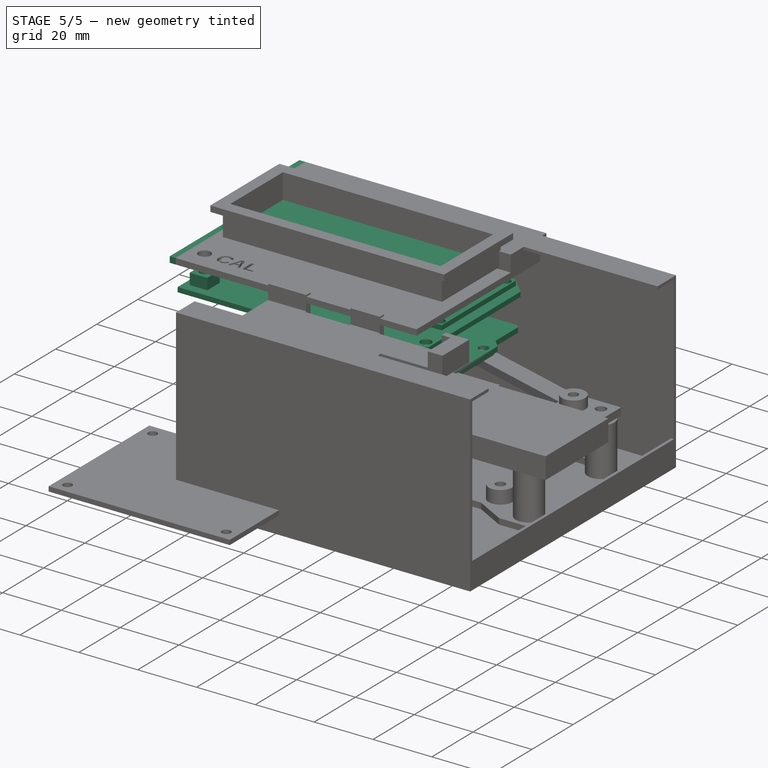
[diagram: stage 5 of 5 — iso view after this stage's code; geometry added in this stage tinted green]
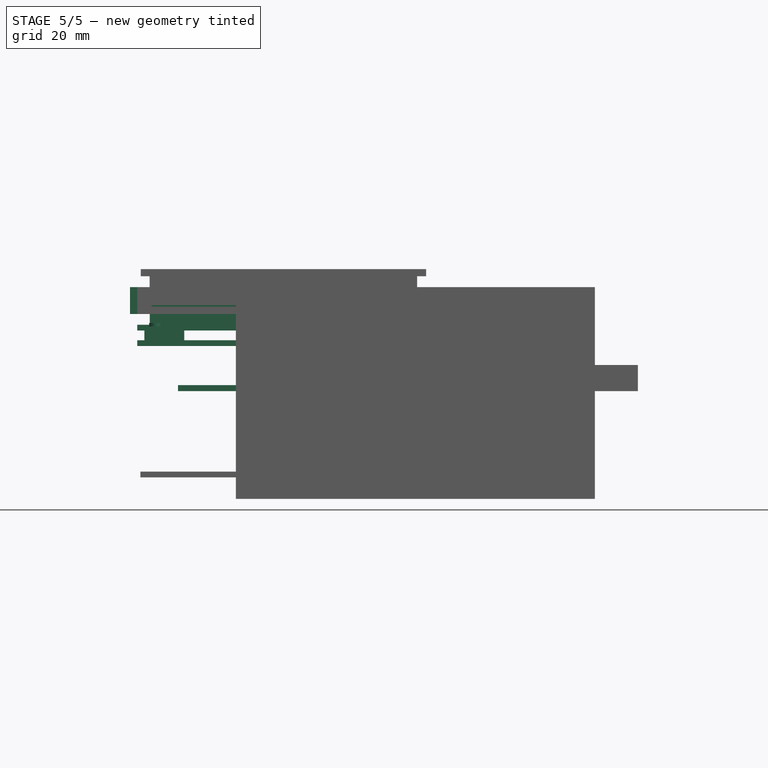
[diagram: stage 5 of 5 — front view after this stage's code; geometry added in this stage tinted green]
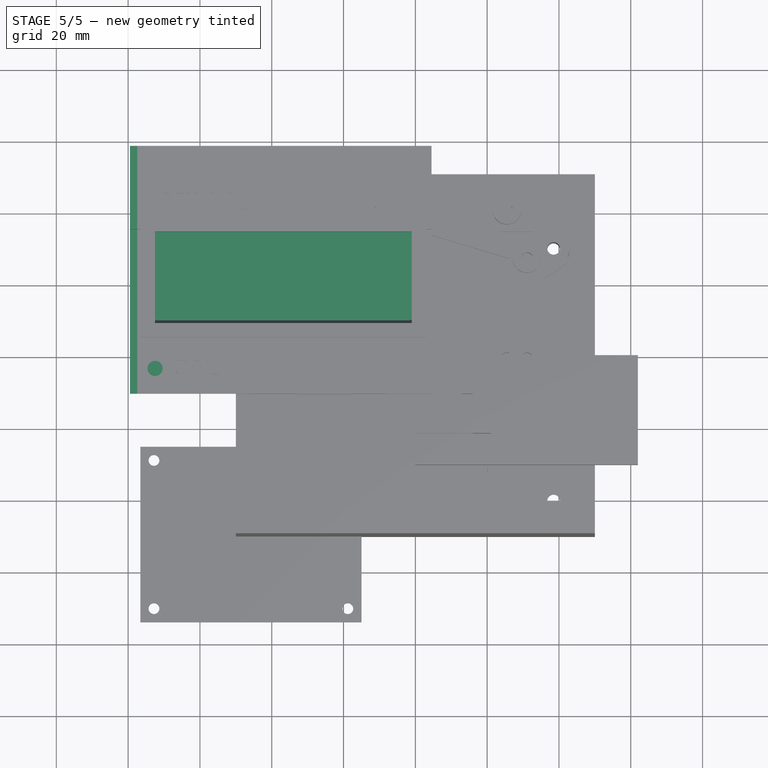
[diagram: stage 5 of 5 — top view after this stage's code; geometry added in this stage tinted green]
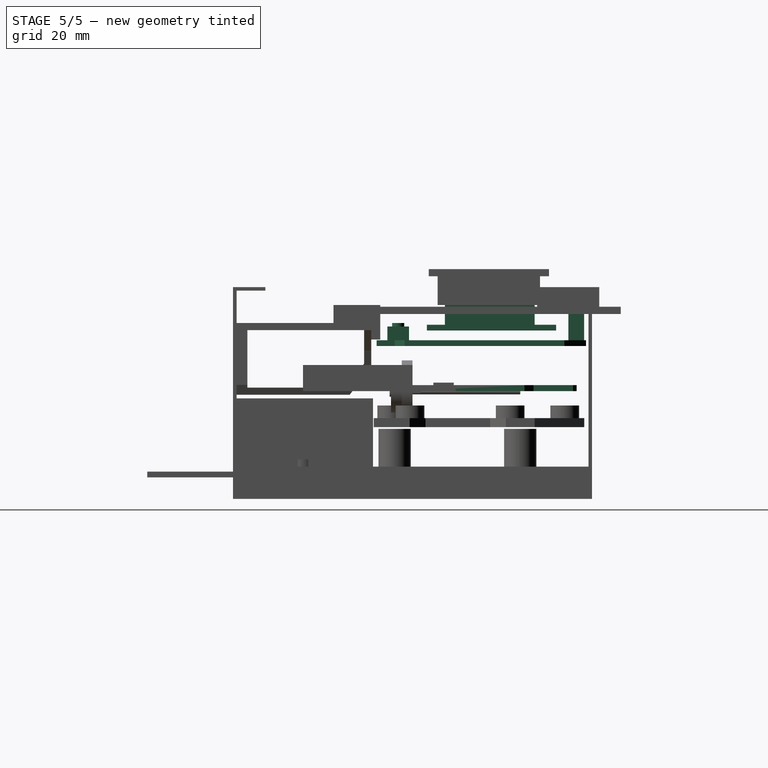
[diagram: stage 5 of 5 — right view after this stage's code; geometry added in this stage tinted green]
FEATURE [Sketcher::SketchObject] Sketch
  FullyConstrained = true
  MapMode = 5
  Support = -> [XY_Plane]
  expr: Constraints[17] = -180 + 45
  sketch-geometry (13):
    g0: LineSegment StartX=-66.1 StartY=-7.6 StartZ=0 EndX=-66.1 EndY=45.7 EndZ=0
    g1: LineSegment StartX=-66.1 StartY=45.7 StartZ=0 EndX=-1 EndY=45.7 EndZ=0
    g2: LineSegment StartX=-1 StartY=45.7 StartZ=0 EndX=0 EndY=44.7 EndZ=0
    g3: LineSegment StartX=0 StartY=44.7 StartZ=0 EndX=0 EndY=33.7 EndZ=0
    g4: LineSegment StartX=0 StartY=33.7 StartZ=0 EndX=2.5 EndY=31.2 EndZ=0
    g5: LineSegment StartX=2.5 StartY=31.2 StartZ=0 EndX=2.5 EndY=-2.6 EndZ=0
    g6: LineSegment StartX=2.5 StartY=-2.6 StartZ=0 EndX=0 EndY=-5.1 EndZ=0
    g7: LineSegment StartX=0 StartY=-5.1 StartZ=0 EndX=0 EndY=-7.6 EndZ=0
    g8: LineSegment StartX=0 StartY=-7.6 StartZ=0 EndX=-66.1 EndY=-7.6 EndZ=0
    g9: Circle CenterX=-50.8 CenterY=43.1 CenterZ=0 NormalX=0 NormalY=0 NormalZ=1 AngleXU=0 Radius=1.6
    g10: Circle CenterX=-52.1 CenterY=-5.1 CenterZ=0 NormalX=0 NormalY=0 NormalZ=1 AngleXU=0 Radius=1.6
    g11: Circle CenterX=0 CenterY=0 CenterZ=0 NormalX=0 NormalY=0 NormalZ=1 AngleXU=0 Radius=1.6
    g12: Circle CenterX=0 CenterY=27.9 CenterZ=0 NormalX=0 NormalY=0 NormalZ=1 AngleXU=0 Radius=1.6
  constraints (40):
    c: Vertical(g0)
    c: Coincident(g0,g1)
    c: Horizontal(g1)
    c: Coincident(g1,g2)
    c: Coincident(g2,g3)
    c: Coincident(g3,g4)
    c: Coincident(g4,g5)
    c: Vertical(g5)
    c: Coincident(g5,g6)
    c: Coincident(g6,g7)
    c: Coincident(g7,g8)
    c: Coincident(g8,g0)
    c: DistanceY(g0,g0) = 53.3
    c: DistanceX(g0,g2) = 66.1
    c: Angle(g2) = -0.785398
    c: Horizontal(g8)
    c: Vertical(g7)
    c: Angle(g6) = -2.35619
    c: Angle(g4) = -0.785398
    c: Vertical(g3)
    c: DistanceY(g7,g7) = 2.5
    c: DistanceY(g2,g1) = 1
    c: DistanceY(g3,g3) = 11
    c: Vertical(g3,g6)
    c: DistanceX(g0,g5) = 68.6
    c: Equal(g10,g9)
    c: Equal(g9,g12)
    c: Equal(g12,g11)
    c: Diameter(g9) = 3.2
    c: DistanceX(g10,g9) = 1.3
    c: DistanceY(g0,g10) = 2.5
    c: Vertical(g11,g12)
    c: DistanceY(g11,g12) = 27.9
    c: DistanceY(g12,g9) = 15.2
    c: DistanceX(g9,g2) = 50.8
    c: DistanceY(g10,g11) = 5.1
    c: Vertical(g12,g3)
    c: Coincident(g11,g-1)
    c: DistanceX(g11,g5) = 2.5
    c: DistanceX(g0,g10) = 14
FEATURE [PartDesign::Pad] Pad
  Direction = (0,0,1)
  Length = 1.7
  Length2 = 10
  Profile = -> Sketch
  ReferenceAxis = -> Sketch [N_Axis]
  Type = 0
FEATURE [PartDesign::Body] Body  label="Arduino_UNO_PCB"
  Group = -> [Sketch,Pad]
  Origin = -> Origin
  Placement = pos=(31,-0.6,0) rot=(0,0,1;0rad)
  Tip = -> Pad
FEATURE [Sketcher::SketchObject] Sketch001
  AttachmentOffset = pos=(0,0,12.6) rot=(0,0,1;0rad)
  FullyConstrained = true
  MapMode = 5
  Placement = pos=(0,0,12.6) rot=(0,0,1;0rad)
  Support = -> [XY_Plane001]
  expr: Constraints[22] = 27.9 + 15.2
  sketch-geometry (9):
    g0: LineSegment StartX=-77.46 StartY=48.3 StartZ=0 EndX=-77.46 EndY=-10 EndZ=0
    g1: LineSegment StartX=-77.46 StartY=-10 StartZ=0 EndX=-0.26 EndY=-10 EndZ=0
    g2: LineSegment StartX=-0.26 StartY=-10 StartZ=0 EndX=-0.26 EndY=-5 EndZ=0
    g3: LineSegment StartX=-0.26 StartY=-5 StartZ=0 EndX=2.54 EndY=-2.2 EndZ=0
    g4: LineSegment StartX=2.54 StartY=-2.2 StartZ=0 EndX=2.54 EndY=42.3 EndZ=0
    g5: LineSegment StartX=2.54 StartY=42.3 StartZ=0 EndX=-3.46 EndY=48.3 EndZ=0
    g6: LineSegment StartX=-3.46 StartY=48.3 StartZ=0 EndX=-77.46 EndY=48.3 EndZ=0
    g7: Circle CenterX=0 CenterY=0 CenterZ=0 NormalX=0 NormalY=0 NormalZ=1 AngleXU=0 Radius=1.85
    g8: Circle CenterX=-50.8 CenterY=43.1 CenterZ=0 NormalX=0 NormalY=0 NormalZ=1 AngleXU=0 Radius=1.85
  constraints (26):
    c: Vertical(g0)
    c: Coincident(g0,g1)
    c: Horizontal(g1)
    c: Coincident(g1,g2)
    c: Coincident(g2,g3)
    c: Coincident(g3,g4)
    c: Coincident(g4,g5)
    c: Coincident(g5,g6)
    c: Coincident(g6,g0)
    c: Horizontal(g6)
    c: Angle(g5) = 2.35619
    c: Vertical(g2)
    c: Angle(g3) = 0.785398
    c: Vertical(g4)
    c: DistanceY(g0,g0) = 58.3
    c: DistanceX(g0,g3) = 80
    c: DistanceY(g2,g2) = 5
    c: DistanceX(g1,g1) = 77.2
    c: DistanceX(g6,g6) = 74
    c: Coincident(g7,g-1)
    c: Equal(g7,g8)
    c: Diameter(g8) = 3.7
    c: DistanceY(g7,g8) = 43.1
    c: DistanceX(g8,g7) = 50.8
    c: DistanceX(g7,g3) = 2.54
    c: DistanceY(g1,g7) = 10
FEATURE [PartDesign::Pad] Pad001  label="pcb"
  Direction = (0,0,1)
  Length = 1.6
  Length2 = 10
  Profile = -> Sketch001
  ReferenceAxis = -> Sketch001 [N_Axis]
  Type = 0
FEATURE [Sketcher::SketchObject] Sketch002
  AttachmentOffset = pos=(0,0,16.9) rot=(0,0,1;0rad)
  FullyConstrained = true
  MapMode = 5
  Placement = pos=(0,0,16.9) rot=(0,0,1;0rad)
  Support = -> [XY_Plane002]
  sketch-geometry (12):
    g0: LineSegment StartX=-77.46 StartY=40 StartZ=0 EndX=2.54 EndY=40 EndZ=0
    g1: LineSegment StartX=2.54 StartY=40 StartZ=0 EndX=2.54 EndY=4 EndZ=0
    g2: LineSegment StartX=2.54 StartY=4 StartZ=0 EndX=-77.46 EndY=4 EndZ=0
    g3: LineSegment StartX=-77.46 StartY=4 StartZ=0 EndX=-77.46 EndY=40 EndZ=0
    g4: LineSegment StartX=-75.46 StartY=38 StartZ=0 EndX=0.54 EndY=38 EndZ=0
    g5: LineSegment StartX=0.54 StartY=38 StartZ=0 EndX=0.54 EndY=6 EndZ=0
    g6: LineSegment StartX=0.54 StartY=6 StartZ=0 EndX=-75.46 EndY=6 EndZ=0
    g7: LineSegment StartX=-75.46 StartY=6 StartZ=0 EndX=-75.46 EndY=38 EndZ=0
    g8: Circle CenterX=-75.46 CenterY=38 CenterZ=0 NormalX=0 NormalY=0 NormalZ=1 AngleXU=0 Radius=1.6
    g9: Circle CenterX=-75.46 CenterY=6 CenterZ=0 NormalX=0 NormalY=0 NormalZ=1 AngleXU=0 Radius=1.6
    g10: Circle CenterX=0.54 CenterY=6 CenterZ=0 NormalX=0 NormalY=0 NormalZ=1 AngleXU=0 Radius=1.6
    g11: Circle CenterX=0.54 CenterY=38 CenterZ=0 NormalX=0 NormalY=0 NormalZ=1 AngleXU=0 Radius=1.6
  constraints (32):
    c: Coincident(g0,g1)
    c: Coincident(g1,g2)
    c: Coincident(g2,g3)
    c: Coincident(g3,g0)
    c: Horizontal(g0)
    c: Horizontal(g2)
    c: Vertical(g1)
    c: Vertical(g3)
    c: DistanceX(g-1,g1) = 2.54
    c: DistanceX(g0,g0) = 80
    c: DistanceY(g3,g3) = 36
    c: DistanceY(g-1,g1) = 4
    c: Coincident(g4,g5)
    c: Coincident(g5,g6)
    c: Coincident(g6,g7)
    c: Coincident(g7,g4)
    c: Horizontal(g4)
    c: Horizontal(g6)
    c: Vertical(g5)
    c: Vertical(g7)
    c: DistanceY(g4,g0) = 2
    c: DistanceY(g2,g6) = 2
    c: DistanceX(g0,g4) = 2
    c: DistanceX(g4,g0) = 2
    c: Coincident(g8,g4)
    c: Coincident(g9,g6)
    c: Coincident(g10,g5)
    c: Coincident(g11,g4)
    c: Equal(g8,g9)
    c: Equal(g9,g11)
    c: Equal(g11,g10)
    c: Diameter(g8) = 3.2
FEATURE [PartDesign::Pad] Pad002
  Direction = (0,0,1)
  Length = 1.6
  Length2 = 10
  Profile = -> Sketch002
  ReferenceAxis = -> Sketch002 [N_Axis]
  Type = 0
FEATURE [Sketcher::SketchObject] Sketch003
  ExternalGeometry = -> [Pad002]
  FullyConstrained = true
  MapMode = 5
  Placement = pos=(0,0,18.5) rot=(0,0,1;0rad)
  Support = -> [Pad002]
  sketch-geometry (4):
    g0: LineSegment StartX=-73.46 StartY=34 StartZ=0 EndX=-1.46 EndY=34 EndZ=0
    g1: LineSegment StartX=-1.46 StartY=34 StartZ=0 EndX=-1.46 EndY=9 EndZ=0
    g2: LineSegment StartX=-1.46 StartY=9 StartZ=0 EndX=-73.46 EndY=9 EndZ=0
    g3: LineSegment StartX=-73.46 StartY=9 StartZ=0 EndX=-73.46 EndY=34 EndZ=0
  constraints (12):
    c: Coincident(g0,g1)
    c: Coincident(g1,g2)
    c: Coincident(g2,g3)
    c: Coincident(g3,g0)
    c: Horizontal(g0)
    c: Horizontal(g2)
    c: Vertical(g1)
    c: Vertical(g3)
    c: DistanceY(g3,g3) = 25
    c: DistanceX(g0,g0) = 72
    c: DistanceY(g-3,g2) = 5
    c: DistanceX(g-3,g2) = 4
FEATURE [PartDesign::Pad] Pad003
  BaseFeature = -> Pad002
  Direction = (0,0,1)
  Length = 7
  Length2 = 10
  Profile = -> Sketch003
  ReferenceAxis = -> Sketch003 [N_Axis]
  Type = 0
FEATURE [PartDesign::Body] Body002  label="PCB_LCD"
  Group = -> [Sketch002,Pad002,Sketch003,Pad003]
  Origin = -> Origin002
  Placement = pos=(31,-0.6,0) rot=(0,0,1;0rad)
  Tip = -> Pad003
FEATURE [Sketcher::SketchObject] Sketch004
  ExternalGeometry = -> [Pad001]
  FullyConstrained = true
  MapMode = 5
  Placement = pos=(0,0,14.2) rot=(0,0,1;0rad)
  Support = -> [Pad001]
  sketch-geometry (4):
    g0: LineSegment StartX=-75.46 StartY=-1 StartZ=0 EndX=-69.46 EndY=-1 EndZ=0
    g1: LineSegment StartX=-69.46 StartY=-1 StartZ=0 EndX=-69.46 EndY=-7 EndZ=0
    g2: LineSegment StartX=-69.46 StartY=-7 StartZ=0 EndX=-75.46 EndY=-7 EndZ=0
    g3: LineSegment StartX=-75.46 StartY=-7 StartZ=0 EndX=-75.46 EndY=-1 EndZ=0
  constraints (12):
    c: Coincident(g0,g1)
    c: Coincident(g1,g2)
    c: Coincident(g2,g3)
    c: Coincident(g3,g0)
    c: Horizontal(g0)
    c: Horizontal(g2)
    c: Vertical(g1)
    c: Vertical(g3)
    c: DistanceX(g0,g0) = 6
    c: Equal(g1,g0)
    c: DistanceX(g-3,g2) = 2
    c: DistanceY(g-3,g2) = 3
FEATURE [PartDesign::Pad] Pad004  label="corps_bouton"
  BaseFeature = -> Pad001
  Direction = (0,0,1)
  Length = 3.8
  Length2 = 10
  Profile = -> Sketch004
  ReferenceAxis = -> Sketch004 [N_Axis]
  Type = 0
FEATURE [Sketcher::SketchObject] Sketch005
  ExternalGeometry = -> [Pad004]
  FullyConstrained = true
  MapMode = 5
  Placement = pos=(0,0,18) rot=(0,0,1;0rad)
  Support = -> [Pad004]
  sketch-geometry (1):
    g0: Circle CenterX=-72.46 CenterY=-4 CenterZ=0 NormalX=0 NormalY=0 NormalZ=1 AngleXU=0 Radius=1.7
  constraints (2):
    c: Symmetric(g-3,g-4,g0)
    c: Diameter(g0) = 3.4
FEATURE [PartDesign::Pad] Pad005  label="bouton"
  BaseFeature = -> Pad004
  Direction = (0,0,1)
  Length = 1
  Length2 = 10
  Profile = -> Sketch005
  ReferenceAxis = -> Sketch005 [N_Axis]
  Type = 0
FEATURE [Sketcher::SketchObject] Sketch006
  ExternalGeometry = -> [Pad005]
  FullyConstrained = true
  MapMode = 5
  Placement = pos=(0,0,14.2) rot=(0,0,1;0rad)
  Support = -> [Pad005]
  sketch-geometry (4):
    g0: LineSegment StartX=-73.96 StartY=47.8 StartZ=0 EndX=-64.36 EndY=47.8 EndZ=0
    g1: LineSegment StartX=-64.36 StartY=47.8 StartZ=0 EndX=-64.36 EndY=43.4 EndZ=0
    g2: LineSegment StartX=-64.36 StartY=43.4 StartZ=0 EndX=-73.96 EndY=43.4 EndZ=0
    g3: LineSegment StartX=-73.96 StartY=43.4 StartZ=0 EndX=-73.96 EndY=47.8 EndZ=0
  constraints (12):
    c: Coincident(g0,g1)
    c: Coincident(g1,g2)
    c: Coincident(g2,g3)
    c: Coincident(g3,g0)
    c: Horizontal(g0)
    c: Horizontal(g2)
    c: Vertical(g1)
    c: Vertical(g3)
    c: DistanceX(g0,g0) = 9.6
    c: DistanceY(g3,g3) = 4.4
    c: DistanceY(g0,g-3) = 0.5
    c: DistanceX(g-3,g0) = 3.5
FEATURE [PartDesign::Pad] Pad006  label="pot"
  BaseFeature = -> Pad005
  Direction = (0,0,1)
  Length = 11.5
  Length2 = 10
  Profile = -> Sketch006
  ReferenceAxis = -> Sketch006 [N_Axis]
  Type = 0
FEATURE [Sketcher::SketchObject] Sketch010
  ExternalGeometry = -> [Pad008]
  FullyConstrained = true
  MapMode = 5
  Placement = pos=(-77.46,1.7e-14,-1.7e-14) rot=(0.57735,0.57735,-0.57735;4.18879rad)
  Support = -> [Pad008]
  sketch-geometry (8):
    g0: LineSegment StartX=-11 StartY=-21.5 StartZ=0 EndX=58 EndY=-21.5 EndZ=0
    g1: LineSegment StartX=58 StartY=-21.5 StartZ=0 EndX=58 EndY=-23.5 EndZ=0
    g2: LineSegment StartX=58 StartY=-23.5 StartZ=0 EndX=52 EndY=-23.5 EndZ=0
    g3: LineSegment StartX=52 StartY=-23.5 StartZ=0 EndX=52 EndY=-29 EndZ=0
    g4: LineSegment StartX=52 StartY=-29 StartZ=0 EndX=34.7 EndY=-29 EndZ=0
    g5: LineSegment StartX=34.7 StartY=-29 StartZ=0 EndX=34.7 EndY=-23.5 EndZ=0
    g6: LineSegment StartX=34.7 StartY=-23.5 StartZ=0 EndX=-11 EndY=-23.5 EndZ=0
    g7: LineSegment StartX=-11 StartY=-23.5 StartZ=0 EndX=-11 EndY=-21.5 EndZ=0
  constraints (16):
    c: Coincident(g-3,g0)
    c: Coincident(g0,g-4)
    c: Coincident(g0,g1)
    c: Coincident(g1,g-4)
    c: Coincident(g1,g2)
    c: Coincident(g2,g-5)
    c: Coincident(g2,g3)
    c: Coincident(g3,g-5)
    c: Coincident(g3,g4)
    c: Coincident(g4,g-6)
    c: Coincident(g4,g5)
    c: Coincident(g5,g-6)
    c: Coincident(g5,g6)
    c: Coincident(g6,g-3)
    c: Coincident(g6,g7)
    c: Coincident(g7,g0)
FEATURE [PartDesign::Pad] Pad009
  BaseFeature = -> Pad008
  Direction = (-1,8e-16,-7e-16)
  Length = 2
  Length2 = 10
  Placement = pos=(0,0,0) rot=(0.57735,0.57735,0.57735;2.0944rad)
  Profile = -> Sketch010
  ReferenceAxis = -> Sketch010 [N_Axis]
  Type = 0
FEATURE [Part::Cut] Cut
  Base = -> Body003
  Tool = -> Extrude
FEATURE [Part::Cut] Cut001  label="Cut_cache_gravé"
  Base = -> Cut
  Tool = -> Extrude001
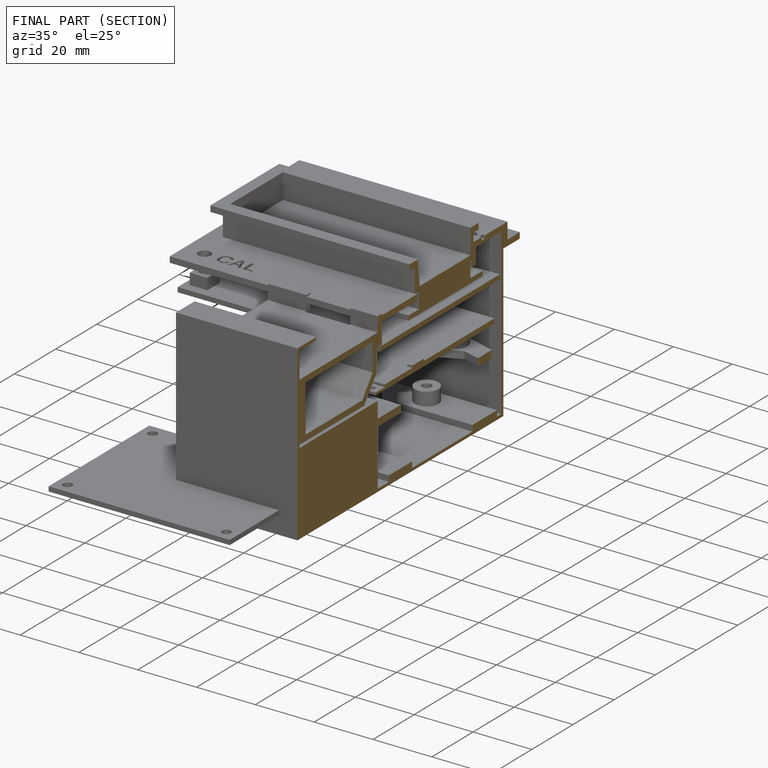
[diagram: finished part — half-section view (interior)]
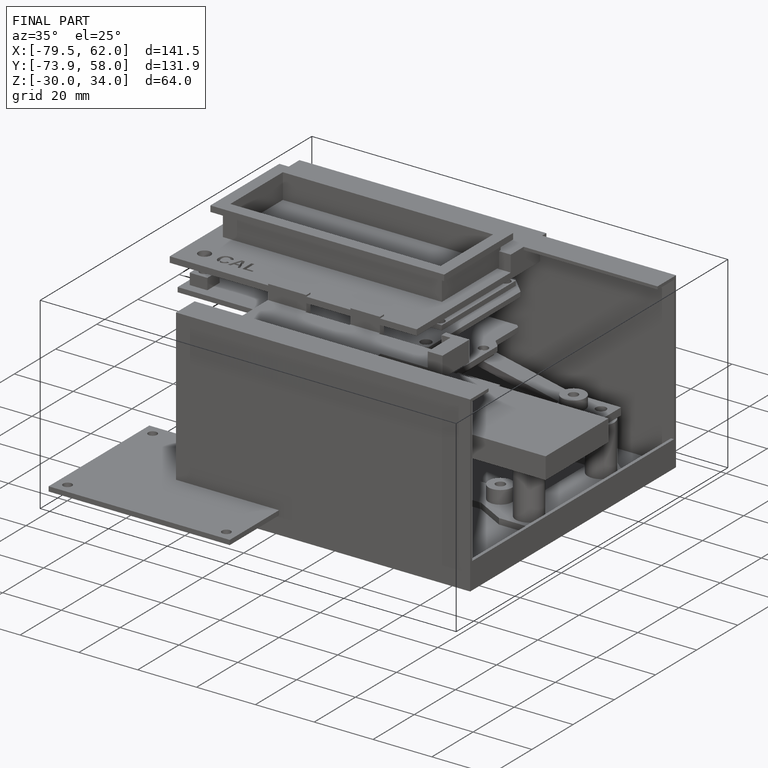
[diagram: finished part — iso view with bounding-box wireframe]
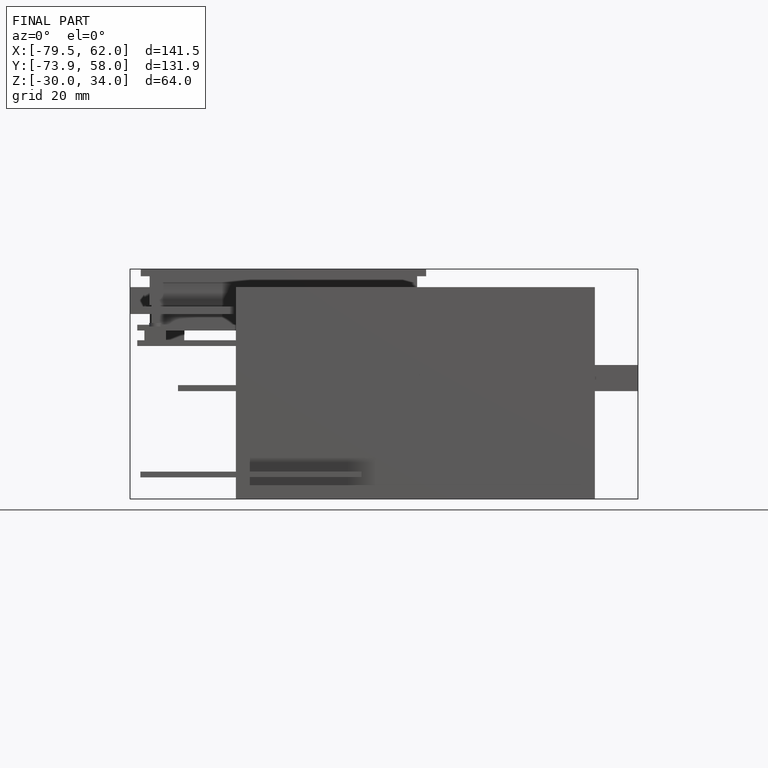
[diagram: finished part — front view with bounding-box wireframe]
